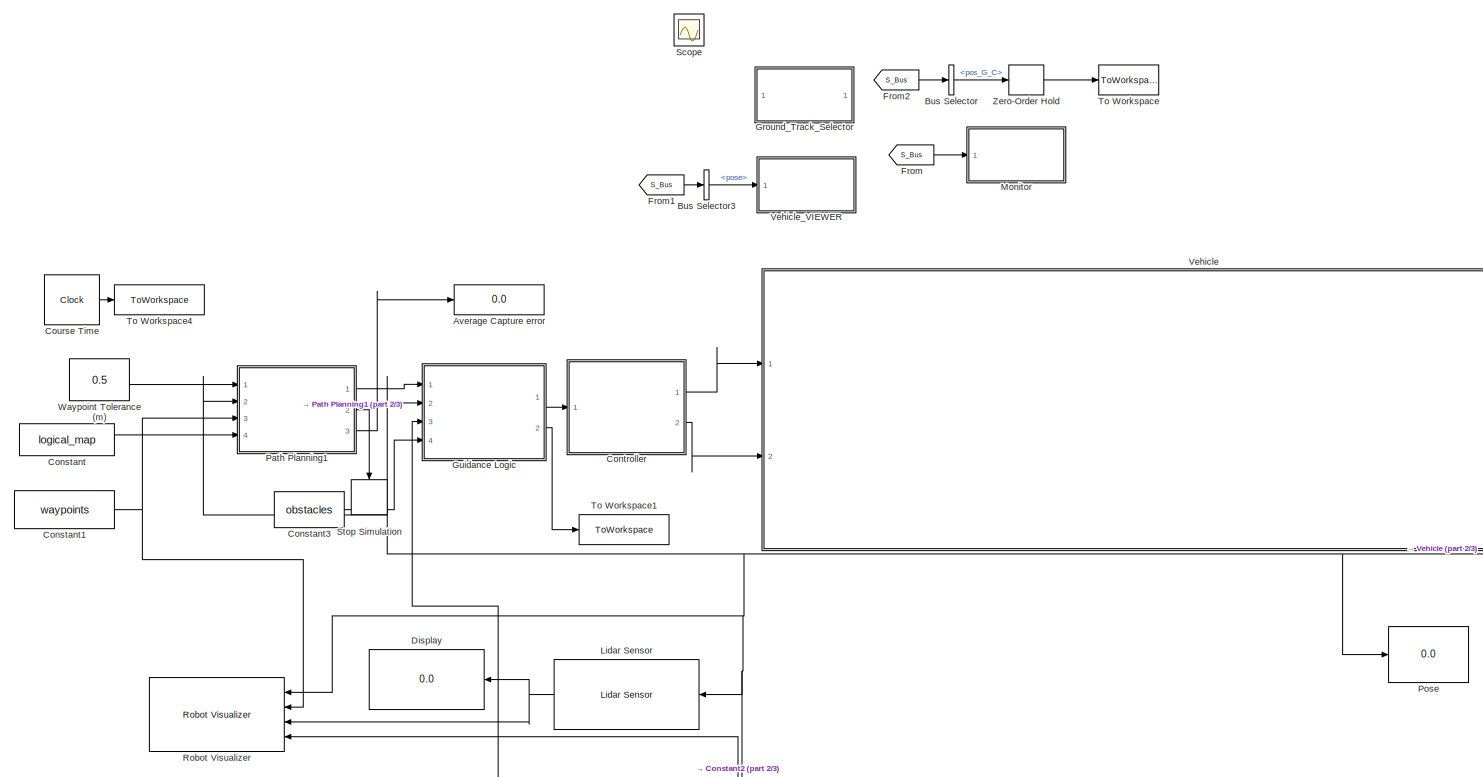
[diagram: root canvas - part 1/3, most of the canvas]
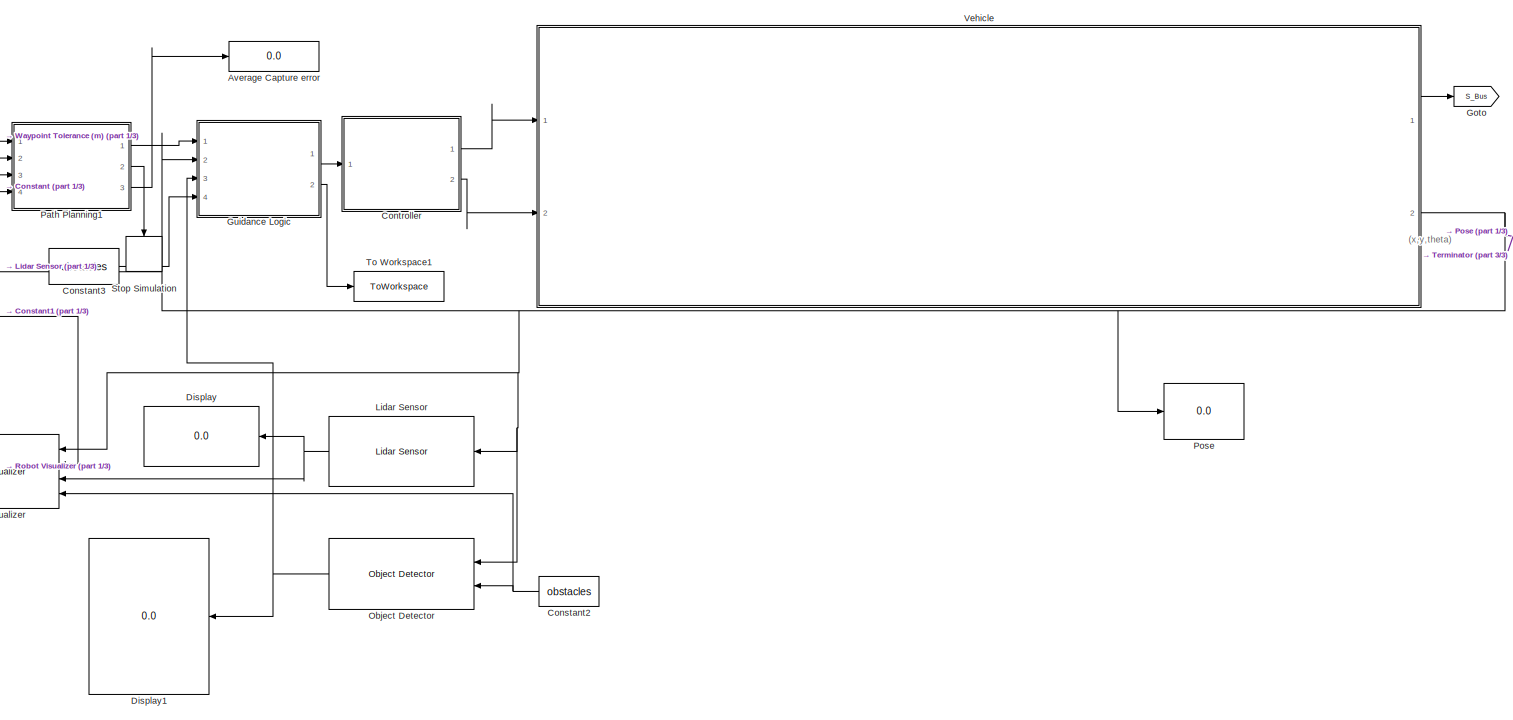
[diagram: root canvas - part 2/3, full width, middle band]
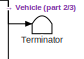
[diagram: root canvas - part 3/3, middle right region]
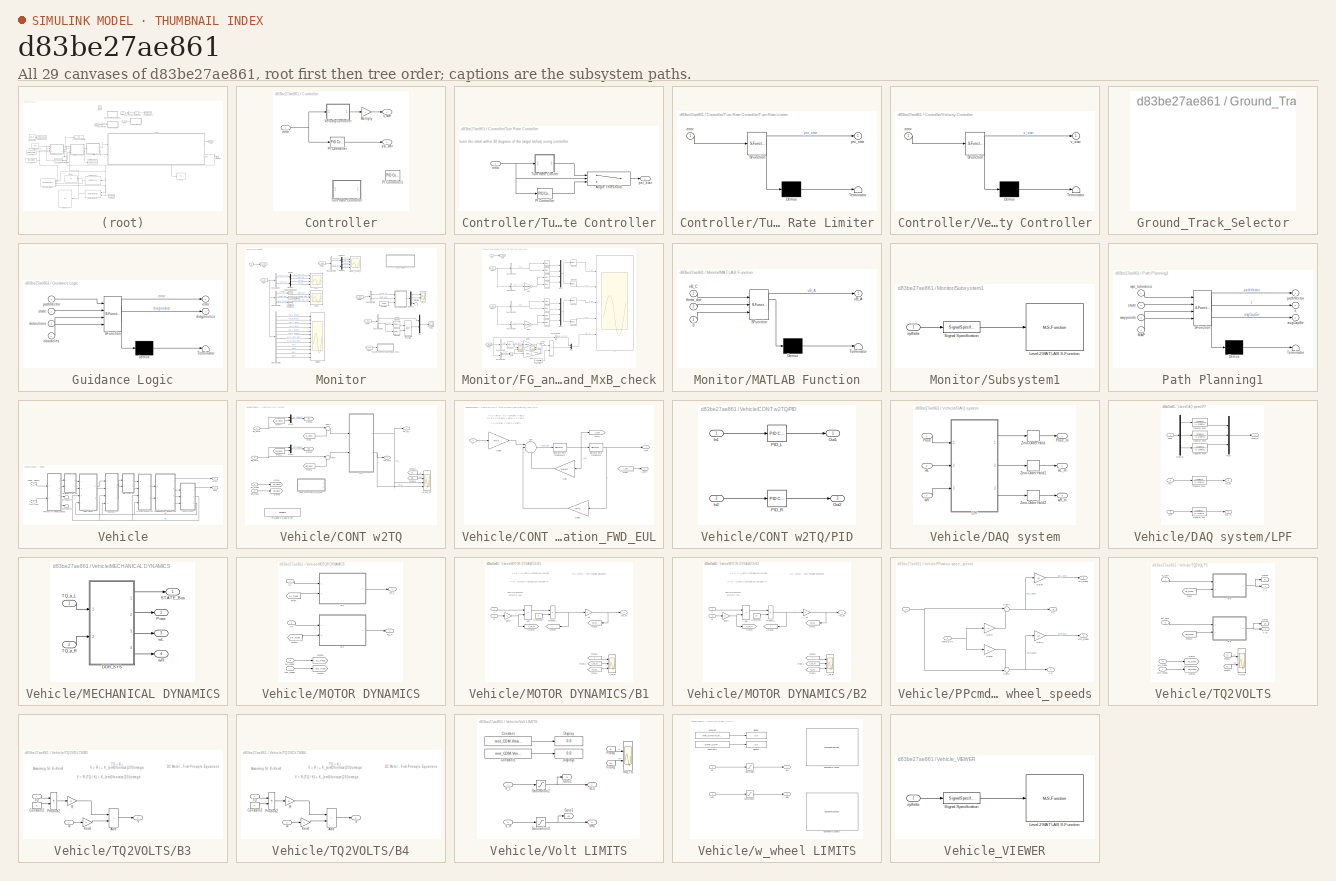
[diagram: thumbnail index - all 29 canvases of the model, root first then tree order]
MODEL slx_d83be27ae861
KIND model
CONFIG AbsTol = auto
CONFIG EnableMultiTasking = on
CONFIG FixedStep = auto
CONFIG InitFcn = load('sim_parameters')
CONFIG MaxStep = auto
CONFIG MinStep = auto
CONFIG RelTol = 1e-5
CONFIG SampleTimeConstraint = Unconstrained
CONFIG SolverName = ode45
CONFIG StartTime = 0.0
CONFIG StopTime = 1000
BLOCK [Display] Average Capture error
  Decimation = 1
  Ports = [1]
BLOCK [BusSelector] Bus Selector
  OutputSignals = BUS_G_frame.pos_G_C
  Ports = [1, 1]
BLOCK [BusSelector] Bus Selector3
  OutputSignals = pose
  Ports = [1, 1]
BLOCK [Constant] Constant
  Value = logical_map
BLOCK [Constant] Constant1
  Value = waypoints
  VectorParams1D = off
BLOCK [Constant] Constant2
  Value = obstacles
  VectorParams1D = off
BLOCK [Constant] Constant3
  Value = obstacles
BLOCK [SubSystem] Controller
  Ports = [1, 2]
  RequestExecContextInheritance = off
BLOCK [Gain] Controller/Multiply
  Commented = through
  Gain = 0
BLOCK [Reference] Controller/PI Controller  REF=pid_lib/PID Controller
  Ports = [1, 1]
  SourceBlock = pid_lib/PID Controller
  SourceProductBaseCode = SL
  SourceType = PID 1dof
BLOCK [Reference] Controller/PI Controller1  REF=pid_lib/PID Controller
  Commented = on
  Ports = [1, 1]
  SourceBlock = pid_lib/PID Controller
  SourceProductBaseCode = SL
  SourceType = PID 1dof
BLOCK [SubSystem] Controller/Turn Rate Controller
  Commented = on
  Ports = [1, 1]
  RequestExecContextInheritance = off
BLOCK [Switch] Controller/Turn Rate Controller/Angle Threshold
  InputSameDT = off
  SaturateOnIntegerOverflow = off
  Threshold = abs(deg2rad(30))+1000
BLOCK [Reference] Controller/Turn Rate Controller/PI Controller  REF=pid_lib/PID Controller
  Ports = [1, 1]
  SourceBlock = pid_lib/PID Controller
  SourceProductBaseCode = SL
  SourceType = PID 1dof
BLOCK [SubSystem] Controller/Turn Rate Controller/Turn Rate Limiter
  ErrorFcn = Stateflow.Translate.translate
  PermitHierarchicalResolution = ExplicitOnly
  Ports = [1, 1]
  RequestExecContextInheritance = off
  SFBlockType = MATLAB Function
  TreatAsAtomicUnit = on
BLOCK [Demux] Controller/Turn Rate Controller/Turn Rate Limiter/ Demux 
  Outputs = 1
  Ports = [1, 1]
BLOCK [S-Function] Controller/Turn Rate Controller/Turn Rate Limiter/ SFunction 
  EnableBusSupport = on
  FunctionName = sf_sfun
  PortCounts = [1 2]
  Ports = [1, 2]
  SFcnIsStateOwnerBlock = off
  SFunctionDeploymentMode = off
  Tag = Stateflow S-Function 4
BLOCK [Terminator] Controller/Turn Rate Controller/Turn Rate Limiter/ Terminator 
BLOCK [Inport] Controller/Turn Rate Controller/Turn Rate Limiter/error
BLOCK [Outport] Controller/Turn Rate Controller/Turn Rate Limiter/psi_star
BLOCK [Inport] Controller/Turn Rate Controller/error
BLOCK [Outport] Controller/Turn Rate Controller/psi_star
BLOCK [SubSystem] Controller/Velocity Controller
  ErrorFcn = Stateflow.Translate.translate
  PermitHierarchicalResolution = ExplicitOnly
  Ports = [1, 1]
  RequestExecContextInheritance = off
  SFBlockType = MATLAB Function
  TreatAsAtomicUnit = on
BLOCK [Demux] Controller/Velocity Controller/ Demux 
  Outputs = 1
  Ports = [1, 1]
BLOCK [S-Function] Controller/Velocity Controller/ SFunction 
  EnableBusSupport = on
  FunctionName = sf_sfun
  PortCounts = [1 2]
  Ports = [1, 2]
  SFcnIsStateOwnerBlock = off
  SFunctionDeploymentMode = off
  Tag = Stateflow S-Function 5
BLOCK [Terminator] Controller/Velocity Controller/ Terminator 
BLOCK [Inport] Controller/Velocity Controller/error
BLOCK [Outport] Controller/Velocity Controller/v_star
BLOCK [Inport] Controller/error
BLOCK [Outport] Controller/psi_star
  Port = 2
BLOCK [Outport] Controller/v_star
BLOCK [Clock] Course Time
  DisplayTime = on
BLOCK [Display] Display
  Decimation = 1
  Ports = [1]
BLOCK [Display] Display1
  Decimation = 1
  Ports = [1]
BLOCK [From] From
  GotoTag = S_Bus
BLOCK [From] From1
  GotoTag = S_Bus
BLOCK [From] From2
  GotoTag = S_Bus
BLOCK [Goto] Goto
  GotoTag = S_Bus
BLOCK [SubSystem] Ground_Track_Selector
  NameLocation = top
  Ports = []
  RequestExecContextInheritance = off
BLOCK [SubSystem] Guidance Logic
  ErrorFcn = Stateflow.Translate.translate
  PermitHierarchicalResolution = ExplicitOnly
  Ports = [4, 2]
  RequestExecContextInheritance = off
  SFBlockType = MATLAB Function
  TreatAsAtomicUnit = on
BLOCK [Demux] Guidance Logic/ Demux 
  Outputs = 1
  Ports = [1, 1]
BLOCK [S-Function] Guidance Logic/ SFunction 
  EnableBusSupport = on
  FunctionName = sf_sfun
  PortCounts = [4 3]
  Ports = [4, 3]
  SFcnIsStateOwnerBlock = off
  SFunctionDeploymentMode = off
  Tag = Stateflow S-Function 2
BLOCK [Terminator] Guidance Logic/ Terminator 
BLOCK [Inport] Guidance Logic/detections
  Port = 3
BLOCK [Outport] Guidance Logic/diagnostics
  Port = 2
BLOCK [Outport] Guidance Logic/error
BLOCK [Inport] Guidance Logic/obstacles
  Port = 4
BLOCK [Inport] Guidance Logic/pathVector
BLOCK [Inport] Guidance Logic/state
  Port = 2
BLOCK [Reference] Lidar Sensor  REF=mobileRoboticsLib/Environments/Lidar Sensor
  Ports = [1, 1]
  SourceBlock = mobileRoboticsLib/Environments/Lidar Sensor
  SourceProductName = Mobile Robotics Simulation Toolbox
  SourceType = LidarSensor
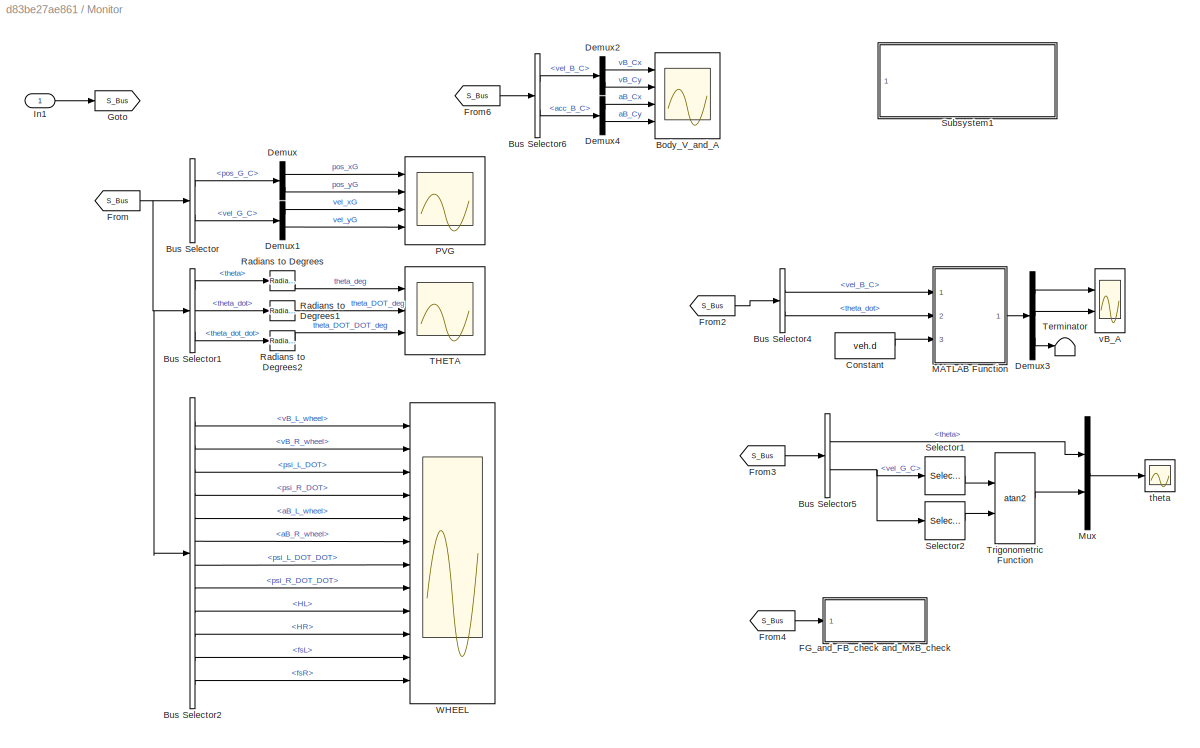
BLOCK [SubSystem] Monitor
  NameLocation = top
  Ports = [1]
  RequestExecContextInheritance = off
BLOCK [Scope] Monitor/Body_V_and_A
  Floating = off
  NumInputPorts = 4
  Ports = [4]
  ScopeSpecificationString = Simulink.scopes.TimeScopeBlockCfg('CurrentConfiguration', extmgr.ConfigurationSet(extmgr.Configuration('Core','General UI',true),extmgr.Configuration('Core','Source UI',true),extmgr.Configuration('Sources','WiredSimulink',true,'DataLoggingVariableName','ScopeData3'),extmgr.Configuration('Visuals','Time Domain',true,'SerializedDisplays',{struct('MinYLimReal','-0.16249','MaxYLimReal','1.46244','YLab...<+3444ch>
BLOCK [BusSelector] Monitor/Bus Selector
  OutputSignals = BUS_G_frame.pos_G_C,BUS_G_frame.vel_G_C
  Ports = [1, 2]
BLOCK [BusSelector] Monitor/Bus Selector1
  OutputSignals = theta,theta_dot,theta_dot_dot
  Ports = [1, 3]
BLOCK [BusSelector] Monitor/Bus Selector2
  OutputSignals = BUS_wheel.BUS_wheel_vel.vB_L_wheel,BUS_wheel.BUS_wheel_vel.vB_R_wheel,BUS_wheel.BUS_wheel_vel.psi_L_DOT,BUS_wheel.BUS_wheel_vel.psi_R_DOT,BUS_wheel.BUS_wheel_acc.aB_L_wheel,BUS_wheel.BUS_wheel_acc.aB_R_wheel,BUS_wheel.BUS_wheel_acc.psi_L_DOT_DOT,BUS_wheel.BUS_wheel_acc.psi_R_DOT_DOT,BUS_wheel.BUS_wheel_force.HL,BUS_wheel.BUS_wheel_force.HR,BUS_wheel.BUS_wheel_force.fsL,BUS_wheel.BUS_wheel_force.fs...<+1ch>
  Ports = [1, 12]
BLOCK [BusSelector] Monitor/Bus Selector4
  OutputSignals = BUS_B_frame.vel_B_C,theta_dot
  Ports = [1, 2]
BLOCK [BusSelector] Monitor/Bus Selector5
  OutputSignals = theta,BUS_G_frame.vel_G_C
  Ports = [1, 2]
BLOCK [BusSelector] Monitor/Bus Selector6
  OutputSignals = BUS_B_frame.vel_B_C,BUS_B_frame.acc_B_C
  Ports = [1, 2]
BLOCK [Constant] Monitor/Constant
  Value = veh.d
BLOCK [Demux] Monitor/Demux
  Outputs = 2
  Ports = [1, 2]
BLOCK [Demux] Monitor/Demux1
  Outputs = 2
  Ports = [1, 2]
BLOCK [Demux] Monitor/Demux2
  Outputs = 2
  Ports = [1, 2]
BLOCK [Demux] Monitor/Demux3
  Outputs = 3
  Ports = [1, 3]
BLOCK [Demux] Monitor/Demux4
  Outputs = 2
  Ports = [1, 2]
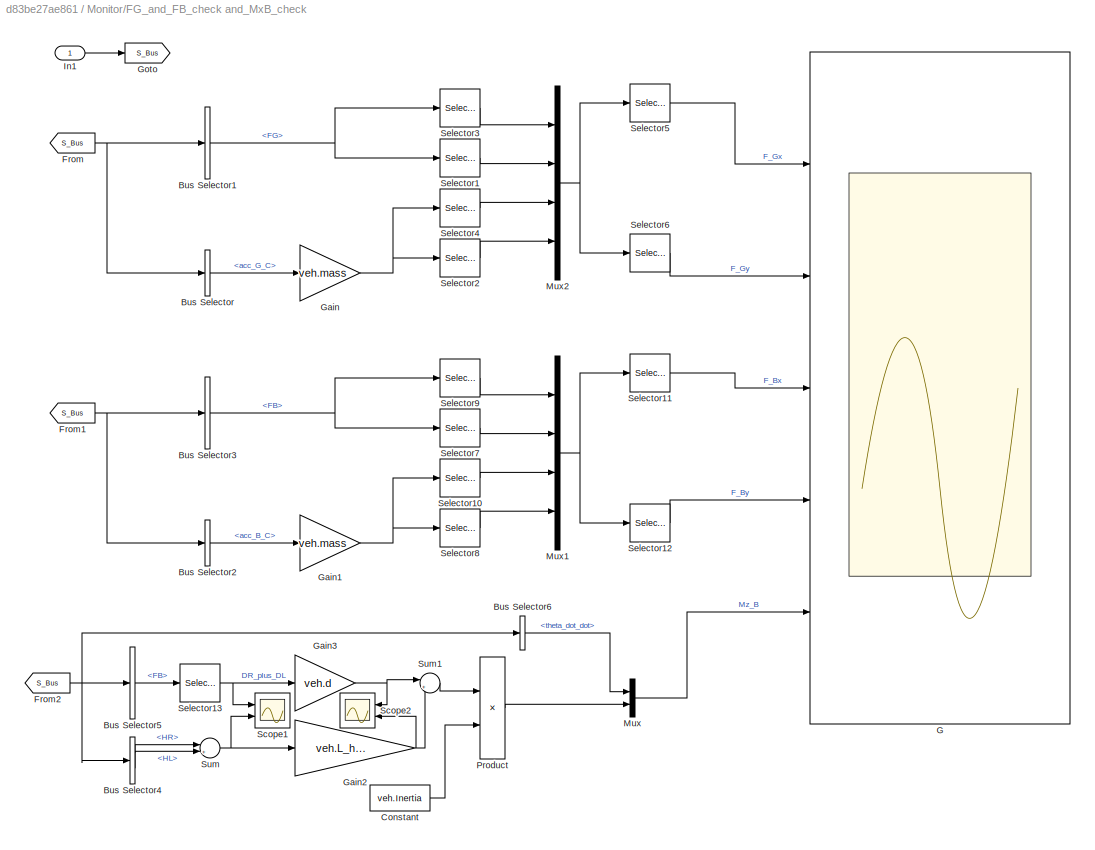
BLOCK [SubSystem] Monitor/FG_and_FB_check and_MxB_check
  NameLocation = top
  Ports = [1]
  RequestExecContextInheritance = off
BLOCK [BusSelector] Monitor/FG_and_FB_check and_MxB_check/Bus Selector
  OutputSignals = BUS_G_frame.acc_G_C
  Ports = [1, 1]
BLOCK [BusSelector] Monitor/FG_and_FB_check and_MxB_check/Bus Selector1
  OutputSignals = BUS_veh_F.BUS_veh_FG.FG
  Ports = [1, 1]
BLOCK [BusSelector] Monitor/FG_and_FB_check and_MxB_check/Bus Selector2
  OutputSignals = BUS_B_frame.acc_B_C
  Ports = [1, 1]
BLOCK [BusSelector] Monitor/FG_and_FB_check and_MxB_check/Bus Selector3
  OutputSignals = BUS_veh_F.BUS_veh_Fb.FB
  Ports = [1, 1]
BLOCK [BusSelector] Monitor/FG_and_FB_check and_MxB_check/Bus Selector4
  OutputSignals = BUS_wheel.BUS_wheel_force.HR,BUS_wheel.BUS_wheel_force.HL
  Ports = [1, 2]
BLOCK [BusSelector] Monitor/FG_and_FB_check and_MxB_check/Bus Selector5
  OutputSignals = BUS_veh_F.BUS_veh_Fb.FB
  Ports = [1, 1]
BLOCK [BusSelector] Monitor/FG_and_FB_check and_MxB_check/Bus Selector6
  OutputSignals = theta_dot_dot
  Ports = [1, 1]
BLOCK [Constant] Monitor/FG_and_FB_check and_MxB_check/Constant
  Value = veh.Inertia
BLOCK [From] Monitor/FG_and_FB_check and_MxB_check/From
  GotoTag = S_Bus
BLOCK [From] Monitor/FG_and_FB_check and_MxB_check/From1
  GotoTag = S_Bus
BLOCK [From] Monitor/FG_and_FB_check and_MxB_check/From2
  GotoTag = S_Bus
BLOCK [Scope] Monitor/FG_and_FB_check and_MxB_check/G
  Floating = off
  NumInputPorts = 5
  Ports = [5]
  ScopeSpecificationString = Simulink.scopes.TimeScopeBlockCfg('CurrentConfiguration', extmgr.ConfigurationSet(extmgr.Configuration('Core','General UI',true),extmgr.Configuration('Core','Source UI',true),extmgr.Configuration('Sources','WiredSimulink',true,'DataLoggingVariableName','ScopeData1'),extmgr.Configuration('Visuals','Time Domain',true,'SerializedDisplays',{struct('MinYLimReal','-2.92698','MaxYLimReal','17.07434','YLa...<+4843ch>
BLOCK [Gain] Monitor/FG_and_FB_check and_MxB_check/Gain
  Gain = veh.mass
BLOCK [Gain] Monitor/FG_and_FB_check and_MxB_check/Gain1
  Gain = veh.mass
BLOCK [Gain] Monitor/FG_and_FB_check and_MxB_check/Gain2
  Gain = veh.L_half_axle
BLOCK [Gain] Monitor/FG_and_FB_check and_MxB_check/Gain3
  Gain = veh.d
BLOCK [Goto] Monitor/FG_and_FB_check and_MxB_check/Goto
  GotoTag = S_Bus
BLOCK [Inport] Monitor/FG_and_FB_check and_MxB_check/In1
BLOCK [Mux] Monitor/FG_and_FB_check and_MxB_check/Mux
  DisplayOption = bar
  Inputs = 2
  Ports = [2, 1]
BLOCK [Mux] Monitor/FG_and_FB_check and_MxB_check/Mux1
  DisplayOption = bar
  Ports = [4, 1]
BLOCK [Mux] Monitor/FG_and_FB_check and_MxB_check/Mux2
  DisplayOption = bar
  Ports = [4, 1]
BLOCK [Product] Monitor/FG_and_FB_check and_MxB_check/Product
  Inputs = */
  Ports = [2, 1]
BLOCK [Scope] Monitor/FG_and_FB_check and_MxB_check/Scope1
  Floating = off
  NumInputPorts = 2
  Ports = [2]
  ScopeSpecificationString = Simulink.scopes.TimeScopeBlockCfg('CurrentConfiguration', extmgr.ConfigurationSet(extmgr.Configuration('Core','General UI',true),extmgr.Configuration('Core','Source UI',true),extmgr.Configuration('Sources','WiredSimulink',true,'DataLoggingVariableName','ScopeData5'),extmgr.Configuration('Visuals','Time Domain',true,'SerializedDisplays',{struct('MinYLimReal','-0.09071','MaxYLimReal','0.16814','YLab...<+2064ch>
BLOCK [Scope] Monitor/FG_and_FB_check and_MxB_check/Scope2
  Floating = off
  NameLocation = top
  NumInputPorts = 2
  Ports = [2]
  ScopeSpecificationString = Simulink.scopes.TimeScopeBlockCfg('CurrentConfiguration', extmgr.ConfigurationSet(extmgr.Configuration('Core','General UI',true),extmgr.Configuration('Core','Source UI',true),extmgr.Configuration('Sources','WiredSimulink',true,'DataLoggingVariableName','ScopeData6'),extmgr.Configuration('Visuals','Time Domain',true,'SerializedDisplays',{struct('MinYLimReal','-0.0093','MaxYLimReal','0.0121','YLabel...<+2057ch>
BLOCK [Selector] Monitor/FG_and_FB_check and_MxB_check/Selector1
  IndexOptions = Index vector (dialog)
  Indices = 2
  InputPortWidth = 2
  OutputSizes = 1
  Ports = [1, 1]
BLOCK [Selector] Monitor/FG_and_FB_check and_MxB_check/Selector10
  IndexOptions = Index vector (dialog)
  Indices = 1
  InputPortWidth = 2
  OutputSizes = 1
  Ports = [1, 1]
BLOCK [Selector] Monitor/FG_and_FB_check and_MxB_check/Selector11
  IndexOptions = Index vector (dialog)
  Indices = [1 3]
  InputPortWidth = 4
  OutputSizes = 1
  Ports = [1, 1]
BLOCK [Selector] Monitor/FG_and_FB_check and_MxB_check/Selector12
  IndexOptions = Index vector (dialog)
  Indices = [2 4]
  InputPortWidth = 4
  OutputSizes = 1
  Ports = [1, 1]
BLOCK [Selector] Monitor/FG_and_FB_check and_MxB_check/Selector13
  IndexOptions = Index vector (dialog)
  Indices = 2
  InputPortWidth = 2
  OutputSizes = 1
  Ports = [1, 1]
BLOCK [Selector] Monitor/FG_and_FB_check and_MxB_check/Selector2
  IndexOptions = Index vector (dialog)
  Indices = 2
  InputPortWidth = 2
  OutputSizes = 1
  Ports = [1, 1]
BLOCK [Selector] Monitor/FG_and_FB_check and_MxB_check/Selector3
  IndexOptions = Index vector (dialog)
  Indices = 1
  InputPortWidth = 2
  OutputSizes = 1
  Ports = [1, 1]
BLOCK [Selector] Monitor/FG_and_FB_check and_MxB_check/Selector4
  IndexOptions = Index vector (dialog)
  Indices = 1
  InputPortWidth = 2
  OutputSizes = 1
  Ports = [1, 1]
BLOCK [Selector] Monitor/FG_and_FB_check and_MxB_check/Selector5
  IndexOptions = Index vector (dialog)
  Indices = [1 3]
  InputPortWidth = 4
  OutputSizes = 1
  Ports = [1, 1]
BLOCK [Selector] Monitor/FG_and_FB_check and_MxB_check/Selector6
  IndexOptions = Index vector (dialog)
  Indices = [2 4]
  InputPortWidth = 4
  OutputSizes = 1
  Ports = [1, 1]
BLOCK [Selector] Monitor/FG_and_FB_check and_MxB_check/Selector7
  IndexOptions = Index vector (dialog)
  Indices = 2
  InputPortWidth = 2
  OutputSizes = 1
  Ports = [1, 1]
BLOCK [Selector] Monitor/FG_and_FB_check and_MxB_check/Selector8
  IndexOptions = Index vector (dialog)
  Indices = 2
  InputPortWidth = 2
  OutputSizes = 1
  Ports = [1, 1]
BLOCK [Selector] Monitor/FG_and_FB_check and_MxB_check/Selector9
  IndexOptions = Index vector (dialog)
  Indices = 1
  InputPortWidth = 2
  OutputSizes = 1
  Ports = [1, 1]
BLOCK [Sum] Monitor/FG_and_FB_check and_MxB_check/Sum
  Inputs = |+-
  Ports = [2, 1]
BLOCK [Sum] Monitor/FG_and_FB_check and_MxB_check/Sum1
  Inputs = |++
  Ports = [2, 1]
BLOCK [From] Monitor/From
  GotoTag = S_Bus
BLOCK [From] Monitor/From2
  GotoTag = S_Bus
BLOCK [From] Monitor/From3
  GotoTag = S_Bus
BLOCK [From] Monitor/From4
  GotoTag = S_Bus
BLOCK [From] Monitor/From6
  GotoTag = S_Bus
BLOCK [Goto] Monitor/Goto
  GotoTag = S_Bus
BLOCK [Inport] Monitor/In1
BLOCK [SubSystem] Monitor/MATLAB Function
  ErrorFcn = Stateflow.Translate.translate
  PermitHierarchicalResolution = ExplicitOnly
  Ports = [3, 1]
  RequestExecContextInheritance = off
  SFBlockType = MATLAB Function
  TreatAsAtomicUnit = on
BLOCK [Demux] Monitor/MATLAB Function/ Demux 
  Outputs = 1
  Ports = [1, 1]
BLOCK [S-Function] Monitor/MATLAB Function/ SFunction 
  EnableBusSupport = on
  FunctionName = sf_sfun
  PortCounts = [3 2]
  Ports = [3, 2]
  SFcnIsStateOwnerBlock = off
  SFunctionDeploymentMode = off
  Tag = Stateflow S-Function 1
BLOCK [Terminator] Monitor/MATLAB Function/ Terminator 
BLOCK [Inport] Monitor/MATLAB Function/d
  Port = 3
BLOCK [Inport] Monitor/MATLAB Function/theta_dot
  Port = 2
BLOCK [Outport] Monitor/MATLAB Function/vB_A
  VectorParamsAs1DForOutWhenUnconnected = off
BLOCK [Inport] Monitor/MATLAB Function/vB_C
BLOCK [Mux] Monitor/Mux
  DisplayOption = bar
  Inputs = 2
  Ports = [2, 1]
BLOCK [Scope] Monitor/PVG
  Floating = off
  NameLocation = top
  NumInputPorts = 4
  Ports = [4]
  ScopeSpecificationString = Simulink.scopes.TimeScopeBlockCfg('CurrentConfiguration', extmgr.ConfigurationSet(extmgr.Configuration('Core','General UI',true),extmgr.Configuration('Core','Source UI',true),extmgr.Configuration('Sources','WiredSimulink',true,'DataLoggingVariableName','ScopeData1'),extmgr.Configuration('Visuals','Time Domain',true,'SerializedDisplays',{struct('MinYLimReal','-374.60719','MaxYLimReal','520.79363','...<+3424ch>
BLOCK [Reference] Monitor/Radians to Degrees  REF=simulink_extras/Transformations/Radians
to Degrees
  Ports = [1, 1]
  SourceBlock = simulink_extras/Transformations/Radians\nto Degrees
  SourceProductBaseCode = SL
  SourceType = RadiansToDegrees
BLOCK [Reference] Monitor/Radians to Degrees1  REF=simulink_extras/Transformations/Radians
to Degrees
  Ports = [1, 1]
  SourceBlock = simulink_extras/Transformations/Radians\nto Degrees
  SourceProductBaseCode = SL
  SourceType = RadiansToDegrees
BLOCK [Reference] Monitor/Radians to Degrees2  REF=simulink_extras/Transformations/Radians
to Degrees
  Ports = [1, 1]
  SourceBlock = simulink_extras/Transformations/Radians\nto Degrees
  SourceProductBaseCode = SL
  SourceType = RadiansToDegrees
BLOCK [Selector] Monitor/Selector1
  IndexOptions = Index vector (dialog)
  Indices = [ 2]
  InputPortWidth = 2
  OutputSizes = 1
  Ports = [1, 1]
BLOCK [Selector] Monitor/Selector2
  IndexOptions = Index vector (dialog)
  Indices = [ 1]
  InputPortWidth = 2
  OutputSizes = 1
  Ports = [1, 1]
BLOCK [SubSystem] Monitor/Subsystem1
  Commented = on
  Ports = [1]
  RequestExecContextInheritance = off
BLOCK [M-S-Function] Monitor/Subsystem1/Level-2 MATLAB S-Function
  FunctionName = bh_ddr_animate_sfun
  Parameters = Ts, wp_mat, veh_ID_num, veh_init_xytheta
  Ports = [1]
BLOCK [SignalSpecification] Monitor/Subsystem1/Signal Specification
  Dimensions = 3
BLOCK [Inport] Monitor/Subsystem1/xytheta
BLOCK [Scope] Monitor/THETA
  Floating = off
  NumInputPorts = 3
  Ports = [3]
  ScopeSpecificationString = Simulink.scopes.TimeScopeBlockCfg('CurrentConfiguration', extmgr.ConfigurationSet(extmgr.Configuration('Core','General UI',true),extmgr.Configuration('Core','Source UI',true),extmgr.Configuration('Sources','WiredSimulink',true,'DataLoggingVariableName','ScopeData2'),extmgr.Configuration('Visuals','Time Domain',true,'SerializedDisplays',{struct('MinYLimReal','-337.76281','MaxYLimReal','707.04365','...<+3096ch>
BLOCK [Terminator] Monitor/Terminator
BLOCK [Trigonometry] Monitor/Trigonometric Function
  Operator = atan2
  Ports = [2, 1]
BLOCK [Scope] Monitor/WHEEL
  Floating = off
  NumInputPorts = 12
  Ports = [12]
  ScopeSpecificationString = Simulink.scopes.TimeScopeBlockCfg('CurrentConfiguration', extmgr.ConfigurationSet(extmgr.Configuration('Core','General UI',true),extmgr.Configuration('Core','Source UI',true),extmgr.Configuration('Sources','WiredSimulink',true,'DataLoggingVariableName','ScopeData3'),extmgr.Configuration('Visuals','Time Domain',true,'SerializedDisplays',{struct('MinYLimReal','-0.17921','MaxYLimReal','1.61286','YLab...<+9057ch>
BLOCK [Scope] Monitor/theta
  Floating = off
  NumInputPorts = 1
  Ports = [1]
  ScopeSpecificationString = Simulink.scopes.TimeScopeBlockCfg('CurrentConfiguration', extmgr.ConfigurationSet(extmgr.Configuration('Core','General UI',true),extmgr.Configuration('Core','Source UI',true),extmgr.Configuration('Sources','WiredSimulink',true,'DataLoggingVariableName','ScopeData2'),extmgr.Configuration('Visuals','Time Domain',true,'SerializedDisplays',{struct('MinYLimReal','-5.78827','MaxYLimReal','12.27495','YLa...<+1420ch>
BLOCK [Scope] Monitor/vB_A
  Floating = off
  NumInputPorts = 2
  Ports = [2]
  ScopeSpecificationString = Simulink.scopes.TimeScopeBlockCfg('CurrentConfiguration', extmgr.ConfigurationSet(extmgr.Configuration('Core','General UI',true),extmgr.Configuration('Core','Source UI',true),extmgr.Configuration('Sources','WiredSimulink',true,'DataLoggingVariableName','ScopeData1'),extmgr.Configuration('Visuals','Time Domain',true,'SerializedDisplays',{struct('MinYLimReal','-0.16316','MaxYLimReal','1.46843','YLab...<+2041ch>
BLOCK [Reference] Object Detector  REF=mobileRoboticsLib/Environments/Object Detector
  Ports = [2, 1]
  SourceBlock = mobileRoboticsLib/Environments/Object Detector
  SourceProductName = Mobile Robotics Simulation Toolbox
  SourceType = ObjectDetector
BLOCK [SubSystem] Path Planning1
  ErrorFcn = Stateflow.Translate.translate
  PermitHierarchicalResolution = ExplicitOnly
  Ports = [4, 3]
  RequestExecContextInheritance = off
  SFBlockType = MATLAB Function
  TreatAsAtomicUnit = on
BLOCK [Demux] Path Planning1/ Demux 
  Outputs = 1
  Ports = [1, 1]
BLOCK [S-Function] Path Planning1/ SFunction 
  EnableBusSupport = on
  FunctionName = sf_sfun
  PortCounts = [4 4]
  Ports = [4, 4]
  SFcnIsStateOwnerBlock = off
  SFunctionDeploymentMode = off
  Tag = Stateflow S-Function 6
BLOCK [Terminator] Path Planning1/ Terminator 
BLOCK [Inport] Path Planning1/MAP
  Port = 4
BLOCK [Outport] Path Planning1/avgCapErr
  Port = 3
BLOCK [Outport] Path Planning1/pathVector
BLOCK [Outport] Path Planning1/s
  Port = 2
BLOCK [Inport] Path Planning1/state
  Port = 2
BLOCK [Inport] Path Planning1/waypoints
  Port = 3
BLOCK [Inport] Path Planning1/wpt_tolerance
BLOCK [Display] Pose
  Decimation = 1
  Ports = [1]
BLOCK [Reference] Robot Visualizer  REF=mobileRoboticsLib/Environments/Robot Visualizer
  Ports = [4]
  SourceBlock = mobileRoboticsLib/Environments/Robot Visualizer
  SourceProductName = Mobile Robotics Simulation Toolbox
  SourceType = Visualizer2D
BLOCK [Scope] Scope
  Floating = off
  IOType = viewer
  NumInputPorts = 1
  Ports = []
  ScopeSpecificationString = Simulink.scopes.TimeScopeBlockCfg('CurrentConfiguration', extmgr.ConfigurationSet(extmgr.Configuration('Core','General UI',true),extmgr.Configuration('Core','Source UI',true),extmgr.Configuration('Sources','WiredSimulink',true,'DataLoggingVariableName','ScopeData1'),extmgr.Configuration('Visuals','Time Domain',true,'SerializedDisplays',{struct('MinYLimReal','0.07','MaxYLimReal','0.09','YLabelReal'...<+1950ch>
BLOCK [Stop] Stop Simulation
  NameLocation = left
BLOCK [Terminator] Terminator
BLOCK [ToWorkspace] To Workspace
  FixptAsFi = on
  MaxDataPoints = inf
  Ports = [1]
  SampleTime = -1
  SaveFormat = Structure With Time
  VariableName = simout
BLOCK [ToWorkspace] To Workspace1
  FixptAsFi = on
  MaxDataPoints = inf
  Ports = [1]
  SampleTime = -1
  VariableName = diagnostics
BLOCK [ToWorkspace] To Workspace4
  FixptAsFi = on
  MaxDataPoints = inf
  Ports = [1]
  SampleTime = -1
  VariableName = timeOut
BLOCK [SubSystem] Vehicle
  Ports = [2, 2]
  RequestExecContextInheritance = off
BLOCK [SubSystem] Vehicle/CONT w2TQ
  NameLocation = top
  Ports = [4, 2]
  RequestExecContextInheritance = off
BLOCK [SubSystem] Vehicle/CONT w2TQ/Deriv_estimation_FWD_EUL
  Commented = on
  Ports = [1, 2]
  RequestExecContextInheritance = off
BLOCK [DiscreteIntegrator] Vehicle/CONT w2TQ/Deriv_estimation_FWD_EUL/Discrete-Time Integrator
  ICPrevOutput = DiscIntNeverNeededParam
  ICPrevScaledInput = DiscIntNeverNeededParam
  InitialConditionSetting = Auto
  Ports = [1, 1]
  SampleTime = dt
BLOCK [DiscreteIntegrator] Vehicle/CONT w2TQ/Deriv_estimation_FWD_EUL/Discrete-Time Integrator1
  ICPrevOutput = DiscIntNeverNeededParam
  ICPrevScaledInput = DiscIntNeverNeededParam
  InitialConditionSetting = Auto
  Ports = [1, 1]
  SampleTime = dt
BLOCK [From] Vehicle/CONT w2TQ/Deriv_estimation_FWD_EUL/From
  GotoTag = Y_DOT
BLOCK [Gain] Vehicle/CONT w2TQ/Deriv_estimation_FWD_EUL/Gain
  Gain = 2*p*wn
  NameLocation = top
BLOCK [Gain] Vehicle/CONT w2TQ/Deriv_estimation_FWD_EUL/Gain1
  Gain = wn^2
  NameLocation = top
BLOCK [Gain] Vehicle/CONT w2TQ/Deriv_estimation_FWD_EUL/Gain2
  Gain = wn^2
BLOCK [Goto] Vehicle/CONT w2TQ/Deriv_estimation_FWD_EUL/Goto
  GotoTag = Y_DOT
BLOCK [Sum] Vehicle/CONT w2TQ/Deriv_estimation_FWD_EUL/Sum
  Inputs = |+--
  Ports = [3, 1]
BLOCK [Inport] Vehicle/CONT w2TQ/Deriv_estimation_FWD_EUL/U
BLOCK [Outport] Vehicle/CONT w2TQ/Deriv_estimation_FWD_EUL/U_DOT
  Port = 2
  VectorParamsAs1DForOutWhenUnconnected = off
BLOCK [Outport] Vehicle/CONT w2TQ/Deriv_estimation_FWD_EUL/U_filt
  VectorParamsAs1DForOutWhenUnconnected = off
BLOCK [From] Vehicle/CONT w2TQ/From
  GotoTag = wL_meas
BLOCK [From] Vehicle/CONT w2TQ/From1
  GotoTag = wR_meas
BLOCK [From] Vehicle/CONT w2TQ/From2
  GotoTag = wL
BLOCK [From] Vehicle/CONT w2TQ/From3
  GotoTag = wR
BLOCK [From] Vehicle/CONT w2TQ/From4
  GotoTag = wL_meas
BLOCK [From] Vehicle/CONT w2TQ/From5
  GotoTag = wR_meas
BLOCK [Goto] Vehicle/CONT w2TQ/Goto2
  GotoTag = wR
BLOCK [Goto] Vehicle/CONT w2TQ/Goto3
  GotoTag = wR_meas
BLOCK [Goto] Vehicle/CONT w2TQ/Goto4
  GotoTag = wL_meas
BLOCK [Goto] Vehicle/CONT w2TQ/Goto5
  GotoTag = wL
BLOCK [Mux] Vehicle/CONT w2TQ/Mux1
  DisplayOption = bar
  Inputs = 2
  Ports = [2, 1]
BLOCK [Mux] Vehicle/CONT w2TQ/Mux2
  DisplayOption = bar
  Inputs = 2
  Ports = [2, 1]
BLOCK [SubSystem] Vehicle/CONT w2TQ/PID
  Ports = [2, 2]
  RequestExecContextInheritance = off
BLOCK [Inport] Vehicle/CONT w2TQ/PID/In1
BLOCK [Inport] Vehicle/CONT w2TQ/PID/In2
  Port = 2
BLOCK [Outport] Vehicle/CONT w2TQ/PID/Out1
  VectorParamsAs1DForOutWhenUnconnected = off
BLOCK [Outport] Vehicle/CONT w2TQ/PID/Out2
  Port = 2
  VectorParamsAs1DForOutWhenUnconnected = off
BLOCK [Reference] Vehicle/CONT w2TQ/PID/PID_L  REF=pid_lib/PID Controller
  Ports = [1, 1]
  SourceBlock = pid_lib/PID Controller
  SourceProductBaseCode = SL
  SourceType = PID 1dof
BLOCK [Reference] Vehicle/CONT w2TQ/PID/PID_R  REF=pid_lib/PID Controller
  Ports = [1, 1]
  SourceBlock = pid_lib/PID Controller
  SourceProductBaseCode = SL
  SourceType = PID 1dof
BLOCK [Reference] Vehicle/CONT w2TQ/PID_DESIGN_SUMMARY  REF=simulink/Model-Wide
Utilities/DocBlock
  Ports = []
  SourceBlock = simulink/Model-Wide\nUtilities/DocBlock
  SourceProductBaseCode = SL
  SourceType = DocBlock
  UserDataPersistent = on
BLOCK [Sum] Vehicle/CONT w2TQ/Sum
  Inputs = |+-
  Ports = [2, 1]
BLOCK [Sum] Vehicle/CONT w2TQ/Sum1
  Inputs = |+-
  Ports = [2, 1]
BLOCK [Outport] Vehicle/CONT w2TQ/TQ_a_L
  VectorParamsAs1DForOutWhenUnconnected = off
BLOCK [Outport] Vehicle/CONT w2TQ/TQ_a_R
  Port = 2
  VectorParamsAs1DForOutWhenUnconnected = off
BLOCK [Inport] Vehicle/CONT w2TQ/wL_CMD
BLOCK [Inport] Vehicle/CONT w2TQ/wL_meas
  NameLocation = top
  Port = 3
BLOCK [Inport] Vehicle/CONT w2TQ/wR_CMD
  Port = 2
BLOCK [Inport] Vehicle/CONT w2TQ/wR_meas
  Port = 4
BLOCK [Scope] Vehicle/CONT w2TQ/w_and_TQ
  Floating = off
  NumInputPorts = 4
  Ports = [4]
  ScopeSpecificationString = Simulink.scopes.TimeScopeBlockCfg('CurrentConfiguration', extmgr.ConfigurationSet(extmgr.Configuration('Core','General UI',true),extmgr.Configuration('Core','Source UI',true),extmgr.Configuration('Sources','WiredSimulink',true,'DataLoggingVariableName','ScopeData7'),extmgr.Configuration('Visuals','Time Domain',true,'SerializedDisplays',{struct('MinYLimReal','-0.70355','MaxYLimReal','6.33198','YLab...<+3449ch>
BLOCK [SubSystem] Vehicle/DAQ system
  Ports = [3, 3]
  RequestExecContextInheritance = off
BLOCK [SubSystem] Vehicle/DAQ system/LPF
  Ports = [3, 3]
  RequestExecContextInheritance = off
BLOCK [Demux] Vehicle/DAQ system/LPF/Demux
  Outputs = 3
  Ports = [1, 3]
BLOCK [Mux] Vehicle/DAQ system/LPF/Mux
  DisplayOption = bar
  Inputs = 3
  Ports = [3, 1]
BLOCK [Inport] Vehicle/DAQ system/LPF/Pose
BLOCK [Outport] Vehicle/DAQ system/LPF/Pose_m
  VectorParamsAs1DForOutWhenUnconnected = off
BLOCK [TransferFcn] Vehicle/DAQ system/LPF/Transfer Fcn
  Denominator = [1 2*pi*fc]
  Numerator = [2*pi*fc]
BLOCK [TransferFcn] Vehicle/DAQ system/LPF/Transfer Fcn1
  Denominator = [1 2*pi*fc]
  Numerator = [2*pi*fc]
BLOCK [TransferFcn] Vehicle/DAQ system/LPF/Transfer Fcn2
  Denominator = [1 2*pi*fc]
  Numerator = [2*pi*fc]
BLOCK [TransferFcn] Vehicle/DAQ system/LPF/Transfer Fcn3
  Denominator = [1 2*pi*fc]
  Numerator = [2*pi*fc]
BLOCK [TransferFcn] Vehicle/DAQ system/LPF/Transfer Fcn4
  Denominator = [1 2*pi*fc]
  Numerator = [2*pi*fc]
BLOCK [Inport] Vehicle/DAQ system/LPF/wL
  Port = 2
BLOCK [Outport] Vehicle/DAQ system/LPF/wL_m
  Port = 2
  VectorParamsAs1DForOutWhenUnconnected = off
BLOCK [Inport] Vehicle/DAQ system/LPF/wR
  Port = 3
BLOCK [Outport] Vehicle/DAQ system/LPF/wR_m
  Port = 3
  VectorParamsAs1DForOutWhenUnconnected = off
BLOCK [Inport] Vehicle/DAQ system/Pose
BLOCK [Outport] Vehicle/DAQ system/Pose_m
  VectorParamsAs1DForOutWhenUnconnected = off
BLOCK [ZeroOrderHold] Vehicle/DAQ system/Zero-Order Hold
  AttributesFormatString = Ts=%<SampleTime>
  SampleTime = Ts
BLOCK [ZeroOrderHold] Vehicle/DAQ system/Zero-Order Hold1
  AttributesFormatString = Ts=%<SampleTime>
  SampleTime = Ts
BLOCK [ZeroOrderHold] Vehicle/DAQ system/Zero-Order Hold2
  AttributesFormatString = Ts=%<SampleTime>
  SampleTime = Ts
BLOCK [Inport] Vehicle/DAQ system/wL
  Port = 2
BLOCK [Outport] Vehicle/DAQ system/wL_m
  Port = 2
  VectorParamsAs1DForOutWhenUnconnected = off
BLOCK [Inport] Vehicle/DAQ system/wR
  Port = 3
BLOCK [Outport] Vehicle/DAQ system/wR_m
  Port = 3
  VectorParamsAs1DForOutWhenUnconnected = off
BLOCK [Inport] Vehicle/Linear velocity
BLOCK [SubSystem] Vehicle/MECHANICAL DYNAMICS
  NameLocation = top
  Ports = [2, 4]
  RequestExecContextInheritance = off
BLOCK [ModelReference] Vehicle/MECHANICAL DYNAMICS/DDR_SYS
  ModelNameDialog = bh_DDR_component_model.slx
  ModelReferenceVersion = 4.0
  NameLocation = top
  Ports = [2, 4]
BLOCK [Outport] Vehicle/MECHANICAL DYNAMICS/Pose
  Port = 2
  VectorParamsAs1DForOutWhenUnconnected = off
BLOCK [Outport] Vehicle/MECHANICAL DYNAMICS/STATE_Bus
  VectorParamsAs1DForOutWhenUnconnected = off
BLOCK [Inport] Vehicle/MECHANICAL DYNAMICS/TQ_a_L
BLOCK [Inport] Vehicle/MECHANICAL DYNAMICS/TQ_a_R
  Port = 2
BLOCK [Outport] Vehicle/MECHANICAL DYNAMICS/wL
  Port = 3
  VectorParamsAs1DForOutWhenUnconnected = off
BLOCK [Outport] Vehicle/MECHANICAL DYNAMICS/wR
  Port = 4
  VectorParamsAs1DForOutWhenUnconnected = off
BLOCK [SubSystem] Vehicle/MOTOR DYNAMICS
  NameLocation = top
  Ports = [4, 2]
  RequestExecContextInheritance = off
BLOCK [SubSystem] Vehicle/MOTOR DYNAMICS/B1
  NameLocation = top
  Ports = [2, 1]
  RequestExecContextInheritance = off
BLOCK [Sum] Vehicle/MOTOR DYNAMICS/B1/Add
  IconShape = rectangular
  Inputs = +-
  Ports = [2, 1]
BLOCK [Constant] Vehicle/MOTOR DYNAMICS/B1/Constant1
  Value = R
BLOCK [From] Vehicle/MOTOR DYNAMICS/B1/From1
  GotoTag = V_Kb_w
BLOCK [From] Vehicle/MOTOR DYNAMICS/B1/From2
  GotoTag = i
BLOCK [From] Vehicle/MOTOR DYNAMICS/B1/From4
  GotoTag = TQ_Kt_i
BLOCK [Goto] Vehicle/MOTOR DYNAMICS/B1/Goto1
  GotoTag = TQ_Kt_i
  NameLocation = top
BLOCK [Goto] Vehicle/MOTOR DYNAMICS/B1/Goto5
  GotoTag = i
  NameLocation = top
BLOCK [Goto] Vehicle/MOTOR DYNAMICS/B1/Goto6
  GotoTag = V_Kb_w
BLOCK [Gain] Vehicle/MOTOR DYNAMICS/B1/Kemf
  Gain = K
BLOCK [Gain] Vehicle/MOTOR DYNAMICS/B1/Kt
  Gain = K
  NameLocation = top
BLOCK [Product] Vehicle/MOTOR DYNAMICS/B1/Product1
  Inputs = */
  Ports = [2, 1]
BLOCK [Outport] Vehicle/MOTOR DYNAMICS/B1/TQ_ki
  VectorParamsAs1DForOutWhenUnconnected = off
BLOCK [Inport] Vehicle/MOTOR DYNAMICS/B1/V
  NameLocation = top
BLOCK [Scope] Vehicle/MOTOR DYNAMICS/B1/i_Vb_Ki
  Floating = off
  NumInputPorts = 3
  Ports = [3]
  ScopeSpecificationString = Simulink.scopes.TimeScopeBlockCfg('CurrentConfiguration', extmgr.ConfigurationSet(extmgr.Configuration('Core','General UI',true),extmgr.Configuration('Core','Source UI',true),extmgr.Configuration('Sources','WiredSimulink',true,'DataLoggingSaveFormat','Array','DataLoggingDecimation','1','DataLoggingDecimateData',true,'DataLoggingVariableName','ScopeData1'),extmgr.Configuration('Visuals','Time Domai...<+2876ch>
BLOCK [Inport] Vehicle/MOTOR DYNAMICS/B1/w
  Port = 2
BLOCK [SubSystem] Vehicle/MOTOR DYNAMICS/B2
  NameLocation = top
  Ports = [2, 1]
  RequestExecContextInheritance = off
BLOCK [Sum] Vehicle/MOTOR DYNAMICS/B2/Add
  IconShape = rectangular
  Inputs = +-
  Ports = [2, 1]
BLOCK [Constant] Vehicle/MOTOR DYNAMICS/B2/Constant1
  Value = R
BLOCK [From] Vehicle/MOTOR DYNAMICS/B2/From1
  GotoTag = V_Kb_w
BLOCK [From] Vehicle/MOTOR DYNAMICS/B2/From2
  GotoTag = i
BLOCK [From] Vehicle/MOTOR DYNAMICS/B2/From4
  GotoTag = TQ_Kt_i
BLOCK [Goto] Vehicle/MOTOR DYNAMICS/B2/Goto1
  GotoTag = TQ_Kt_i
  NameLocation = top
BLOCK [Goto] Vehicle/MOTOR DYNAMICS/B2/Goto5
  GotoTag = i
  NameLocation = top
BLOCK [Goto] Vehicle/MOTOR DYNAMICS/B2/Goto6
  GotoTag = V_Kb_w
BLOCK [Gain] Vehicle/MOTOR DYNAMICS/B2/Kemf
  Gain = K
BLOCK [Gain] Vehicle/MOTOR DYNAMICS/B2/Kt
  Gain = K
  NameLocation = top
BLOCK [Product] Vehicle/MOTOR DYNAMICS/B2/Product1
  Inputs = */
  Ports = [2, 1]
BLOCK [Outport] Vehicle/MOTOR DYNAMICS/B2/TQ_ki
  VectorParamsAs1DForOutWhenUnconnected = off
BLOCK [Inport] Vehicle/MOTOR DYNAMICS/B2/V
  NameLocation = top
BLOCK [Scope] Vehicle/MOTOR DYNAMICS/B2/i_Vb_Ki
  Floating = off
  NumInputPorts = 3
  Ports = [3]
  ScopeSpecificationString = Simulink.scopes.TimeScopeBlockCfg('CurrentConfiguration', extmgr.ConfigurationSet(extmgr.Configuration('Core','General UI',true),extmgr.Configuration('Core','Source UI',true),extmgr.Configuration('Sources','WiredSimulink',true,'DataLoggingSaveFormat','Array','DataLoggingDecimation','1','DataLoggingDecimateData',true,'DataLoggingVariableName','ScopeData1'),extmgr.Configuration('Visuals','Time Domai...<+2876ch>
BLOCK [Inport] Vehicle/MOTOR DYNAMICS/B2/w
  Port = 2
BLOCK [From] Vehicle/MOTOR DYNAMICS/From
  GotoTag = wL_meas
BLOCK [From] Vehicle/MOTOR DYNAMICS/From3
  GotoTag = wR_meas
BLOCK [Goto] Vehicle/MOTOR DYNAMICS/Goto3
  GotoTag = wR_meas
BLOCK [Goto] Vehicle/MOTOR DYNAMICS/Goto4
  GotoTag = wL_meas
BLOCK [Outport] Vehicle/MOTOR DYNAMICS/TQ_L
  VectorParamsAs1DForOutWhenUnconnected = off
BLOCK [Outport] Vehicle/MOTOR DYNAMICS/TQ_R
  Port = 2
  VectorParamsAs1DForOutWhenUnconnected = off
BLOCK [Inport] Vehicle/MOTOR DYNAMICS/VL
  NameLocation = top
BLOCK [Inport] Vehicle/MOTOR DYNAMICS/VR
  NameLocation = top
  Port = 2
BLOCK [Inport] Vehicle/MOTOR DYNAMICS/wL_meas
  NameLocation = top
  Port = 3
BLOCK [Inport] Vehicle/MOTOR DYNAMICS/wR_meas
  Port = 4
BLOCK [SubSystem] Vehicle/PPcmds to wheel_speeds
  NameLocation = top
  Ports = [2, 4]
  RequestExecContextInheritance = off
BLOCK [Gain] Vehicle/PPcmds to wheel_speeds/Gain4
  Gain = L
BLOCK [Gain] Vehicle/PPcmds to wheel_speeds/Gain5
  Gain = L
BLOCK [Gain] Vehicle/PPcmds to wheel_speeds/Gain6
  Gain = 1/r
BLOCK [Gain] Vehicle/PPcmds to wheel_speeds/Gain7
  Gain = 1/r
BLOCK [Sum] Vehicle/PPcmds to wheel_speeds/Sum2
  Inputs = |+-
  Ports = [2, 1]
BLOCK [Sum] Vehicle/PPcmds to wheel_speeds/Sum3
  Inputs = ++|
  Ports = [2, 1]
BLOCK [Outport] Vehicle/PPcmds to wheel_speeds/VL
  Port = 3
  VectorParamsAs1DForOutWhenUnconnected = off
BLOCK [Outport] Vehicle/PPcmds to wheel_speeds/VR
  Port = 4
  VectorParamsAs1DForOutWhenUnconnected = off
BLOCK [Inport] Vehicle/PPcmds to wheel_speeds/theta_DOT
  Port = 2
BLOCK [Inport] Vehicle/PPcmds to wheel_speeds/v
BLOCK [Outport] Vehicle/PPcmds to wheel_speeds/wL_wheel
  VectorParamsAs1DForOutWhenUnconnected = off
BLOCK [Outport] Vehicle/PPcmds to wheel_speeds/wR_wheel
  Port = 2
  VectorParamsAs1DForOutWhenUnconnected = off
BLOCK [SubSystem] Vehicle/TQ2VOLTS
  NameLocation = top
  Ports = [4, 2]
  RequestExecContextInheritance = off
BLOCK [SubSystem] Vehicle/TQ2VOLTS/B3
  NameLocation = top
  Ports = [2, 1]
  RequestExecContextInheritance = off
BLOCK [Sum] Vehicle/TQ2VOLTS/B3/Add
  IconShape = rectangular
  Ports = [2, 1]
BLOCK [Constant] Vehicle/TQ2VOLTS/B3/Constant2
  Value = K
BLOCK [Gain] Vehicle/TQ2VOLTS/B3/Kemf
  Gain = K
BLOCK [Product] Vehicle/TQ2VOLTS/B3/Product2
  Inputs = */
  Ports = [2, 1]
BLOCK [Gain] Vehicle/TQ2VOLTS/B3/R
  Gain = R
BLOCK [Inport] Vehicle/TQ2VOLTS/B3/TQ
  NameLocation = top
BLOCK [Outport] Vehicle/TQ2VOLTS/B3/V
  VectorParamsAs1DForOutWhenUnconnected = off
BLOCK [Inport] Vehicle/TQ2VOLTS/B3/w
  Port = 2
BLOCK [SubSystem] Vehicle/TQ2VOLTS/B4
  NameLocation = top
  Ports = [2, 1]
  RequestExecContextInheritance = off
BLOCK [Sum] Vehicle/TQ2VOLTS/B4/Add
  IconShape = rectangular
  Ports = [2, 1]
BLOCK [Constant] Vehicle/TQ2VOLTS/B4/Constant2
  Value = K
BLOCK [Gain] Vehicle/TQ2VOLTS/B4/Kemf
  Gain = K
BLOCK [Product] Vehicle/TQ2VOLTS/B4/Product2
  Inputs = */
  Ports = [2, 1]
BLOCK [Gain] Vehicle/TQ2VOLTS/B4/R
  Gain = R
BLOCK [Inport] Vehicle/TQ2VOLTS/B4/TQ
  NameLocation = top
BLOCK [Outport] Vehicle/TQ2VOLTS/B4/V
  VectorParamsAs1DForOutWhenUnconnected = off
BLOCK [Inport] Vehicle/TQ2VOLTS/B4/w
  Port = 2
BLOCK [From] Vehicle/TQ2VOLTS/From
  GotoTag = wL_meas
BLOCK [From] Vehicle/TQ2VOLTS/From1
  GotoTag = vR
BLOCK [From] Vehicle/TQ2VOLTS/From2
  GotoTag = vL
BLOCK [From] Vehicle/TQ2VOLTS/From3
  GotoTag = wR_meas
BLOCK [Goto] Vehicle/TQ2VOLTS/Goto1
  GotoTag = vL
BLOCK [Goto] Vehicle/TQ2VOLTS/Goto2
  GotoTag = vR
BLOCK [Goto] Vehicle/TQ2VOLTS/Goto3
  GotoTag = wR_meas
BLOCK [Goto] Vehicle/TQ2VOLTS/Goto4
  GotoTag = wL_meas
BLOCK [Inport] Vehicle/TQ2VOLTS/TL_cmd
BLOCK [Inport] Vehicle/TQ2VOLTS/TR_cmd
  Port = 2
BLOCK [Scope] Vehicle/TQ2VOLTS/VOLTS
  Floating = off
  NumInputPorts = 2
  Ports = [2]
  ScopeSpecificationString = Simulink.scopes.TimeScopeBlockCfg('CurrentConfiguration', extmgr.ConfigurationSet(extmgr.Configuration('Core','General UI',true),extmgr.Configuration('Core','Source UI',true),extmgr.Configuration('Sources','WiredSimulink',true,'DataLoggingVariableName','ScopeData1'),extmgr.Configuration('Visuals','Time Domain',true,'SerializedDisplays',{struct('MinYLimReal','0.40116','MaxYLimReal','2.46475','YLabe...<+2054ch>
BLOCK [Outport] Vehicle/TQ2VOLTS/V_L
  VectorParamsAs1DForOutWhenUnconnected = off
BLOCK [Outport] Vehicle/TQ2VOLTS/V_R
  Port = 2
  VectorParamsAs1DForOutWhenUnconnected = off
BLOCK [Inport] Vehicle/TQ2VOLTS/wL_meas
  NameLocation = top
  Port = 3
BLOCK [Inport] Vehicle/TQ2VOLTS/wR_meas
  Port = 4
BLOCK [Terminator] Vehicle/Terminator3
BLOCK [Terminator] Vehicle/Terminator4
BLOCK [SubSystem] Vehicle/Volt LIMITS
  NameLocation = top
  Ports = [2, 2]
  RequestExecContextInheritance = off
BLOCK [Constant] Vehicle/Volt LIMITS/Constant
  Value = mot_COM.Vmax_sat
BLOCK [Constant] Vehicle/Volt LIMITS/Constant1
  Value = mot_COM.Vmin_sat
BLOCK [Display] Vehicle/Volt LIMITS/Display
  Decimation = 1
  Ports = [1]
BLOCK [Display] Vehicle/Volt LIMITS/Display1
  Decimation = 1
  Ports = [1]
BLOCK [From] Vehicle/Volt LIMITS/From1
  GotoTag = vR
BLOCK [From] Vehicle/Volt LIMITS/From2
  GotoTag = vL
BLOCK [Goto] Vehicle/Volt LIMITS/Goto1
  GotoTag = vL
BLOCK [Goto] Vehicle/Volt LIMITS/Goto2
  GotoTag = vR
BLOCK [Saturate] Vehicle/Volt LIMITS/Saturation2
  AttributesFormatString = %<UpperLimit>\n%<LowerLimit>
  LowerLimit = mot_COM.Vmin_sat
  UpperLimit = mot_COM.Vmax_sat
BLOCK [Saturate] Vehicle/Volt LIMITS/Saturation3
  AttributesFormatString = %<UpperLimit>\n%<LowerLimit>
  LowerLimit = mot_COM.Vmin_sat
  UpperLimit = mot_COM.Vmax_sat
BLOCK [Outport] Vehicle/Volt LIMITS/VLs
  VectorParamsAs1DForOutWhenUnconnected = off
BLOCK [Scope] Vehicle/Volt LIMITS/VOLTS
  Floating = off
  NumInputPorts = 2
  Ports = [2]
  ScopeSpecificationString = C++SS(StrPVP('SaveName','ScopeData1'),StrPVP('LimitDataPoints','on'),StrPVP('DataFormat','Array'),StrPVP('Decimation','1'),StrPVP('BlockParamSampleInput','off'))
BLOCK [Outport] Vehicle/Volt LIMITS/VRs
  Port = 2
  VectorParamsAs1DForOutWhenUnconnected = off
BLOCK [Inport] Vehicle/Volt LIMITS/V_L
BLOCK [Inport] Vehicle/Volt LIMITS/V_R
  Port = 2
BLOCK [Outport] Vehicle/pose
  Port = 2
  VectorParamsAs1DForOutWhenUnconnected = off
BLOCK [Outport] Vehicle/state
  VectorParamsAs1DForOutWhenUnconnected = off
BLOCK [Inport] Vehicle/turn rate
  Port = 2
BLOCK [SubSystem] Vehicle/w_wheel LIMITS
  NameLocation = top
  Ports = [2, 2]
  RequestExecContextInheritance = off
BLOCK [Constant] Vehicle/w_wheel LIMITS/Constant
  Value = mot_COM.w_max
BLOCK [Constant] Vehicle/w_wheel LIMITS/Constant1
  Value = -1*mot_COM.w_max
BLOCK [DashboardScope] Vehicle/w_wheel LIMITS/Dashboard Scope
BLOCK [DashboardScope] Vehicle/w_wheel LIMITS/Dashboard Scope1
BLOCK [Display] Vehicle/w_wheel LIMITS/Display
  Decimation = 1
  Ports = [1]
BLOCK [Display] Vehicle/w_wheel LIMITS/Display1
  Decimation = 1
  Ports = [1]
BLOCK [Saturate] Vehicle/w_wheel LIMITS/Saturation
  AttributesFormatString = wmax = %<UpperLimit>\nwmin = %<LowerLimit>
  LowerLimit = -1*mot_COM.w_max
  UpperLimit = mot_COM.w_max
BLOCK [Saturate] Vehicle/w_wheel LIMITS/Saturation1
  AttributesFormatString = wmax = %<UpperLimit>\nwmin = %<LowerLimit>
  LowerLimit = -1*mot_COM.w_max
  UpperLimit = mot_COM.w_max
BLOCK [Inport] Vehicle/w_wheel LIMITS/wL
BLOCK [Outport] Vehicle/w_wheel LIMITS/wLs
  VectorParamsAs1DForOutWhenUnconnected = off
BLOCK [Inport] Vehicle/w_wheel LIMITS/wR
  Port = 2
BLOCK [Outport] Vehicle/w_wheel LIMITS/wRs
  Port = 2
  VectorParamsAs1DForOutWhenUnconnected = off
BLOCK [SubSystem] Vehicle_VIEWER
  Commented = on
  NameLocation = top
  Ports = [1]
  RequestExecContextInheritance = off
BLOCK [M-S-Function] Vehicle_VIEWER/Level-2 MATLAB S-Function
  FunctionName = bh_ddr_animate_sfun
  Parameters = Ts, wp_mat, veh_ID_num, veh_init_xytheta
  Ports = [1]
BLOCK [SignalSpecification] Vehicle_VIEWER/Signal Specification
  Dimensions = 3
BLOCK [Inport] Vehicle_VIEWER/xytheta
BLOCK [Constant] Waypoint Tolerance (m)
  Value = 0.5
BLOCK [ZeroOrderHold] Zero-Order Hold
  SampleTime = 0.01
ANNOTATION (root): (x,y,theta)
ANNOTATION Controller/Turn Rate Controller: Turns the robot within 30 degrees of the target before using controller
ANNOTATION Vehicle/CONT w2TQ/Deriv_estimation_FWD_EUL: Y = U * wn^2/( s^2 + 2*p*wn*s + wn^2) Y*( s^2 + 2*p*wn*s + wn^2) = U * wn^2 y'' + y'*2*p*wn + y*wn^2 = U*wn^2
ANNOTATION Vehicle/MOTOR DYNAMICS/B1: DC Motor - First Principle Equations
ANNOTATION Vehicle/MOTOR DYNAMICS/B1: Electrical Equation (Kirchoff's Law)
ANNOTATION Vehicle/MOTOR DYNAMICS/B1: V = R i + K_{emf}\fontsize{20}\omega
ANNOTATION Vehicle/MOTOR DYNAMICS/B1: i = (V - K_{emf}\fontsize{20}\omega)/R
ANNOTATION Vehicle/MOTOR DYNAMICS/B2: DC Motor - First Principle Equations
ANNOTATION Vehicle/MOTOR DYNAMICS/B2: Electrical Equation (Kirchoff's Law)
ANNOTATION Vehicle/MOTOR DYNAMICS/B2: V = R i + K_{emf}\fontsize{20}\omega
ANNOTATION Vehicle/MOTOR DYNAMICS/B2: i = (V - K_{emf}\fontsize{20}\omega)/R
ANNOTATION Vehicle/TQ2VOLTS/B3: Assuming SI: K=Kemf
ANNOTATION Vehicle/TQ2VOLTS/B3: DC Motor - First Principle Equations
ANNOTATION Vehicle/TQ2VOLTS/B3: TQ = K.i V = R i + K_{emf}\fontsize{20}\omega
ANNOTATION Vehicle/TQ2VOLTS/B3: V = R.(TQ / K) + K_{emf}\fontsize{20}\omega
ANNOTATION Vehicle/TQ2VOLTS/B4: Assuming SI: K=Kemf
ANNOTATION Vehicle/TQ2VOLTS/B4: DC Motor - First Principle Equations
ANNOTATION Vehicle/TQ2VOLTS/B4: TQ = K.i V = R i + K_{emf}\fontsize{20}\omega
ANNOTATION Vehicle/TQ2VOLTS/B4: V = R.(TQ / K) + K_{emf}\fontsize{20}\omega
LINE Bus Selector3:1 -> Vehicle_VIEWER:1
LINE Bus Selector:1 -> Zero-Order Hold:1
NET Constant1:1 -> Path Planning1:3, Robot Visualizer:2
NET Constant2:1 -> Object Detector:2, Robot Visualizer:4
LINE Constant3:1 -> Guidance Logic:4
LINE Constant:1 -> Path Planning1:4
LINE Controller/Multiply:1 -> Controller/v_star:1
LINE Controller/PI Controller:1 -> Controller/psi_star:1
LINE Controller/Turn Rate Controller/Angle Threshold:1 -> Controller/Turn Rate Controller/psi_star:1
LINE Controller/Turn Rate Controller/PI Controller:1 -> Controller/Turn Rate Controller/Angle Threshold:3
LINE Controller/Turn Rate Controller/Turn Rate Limiter:1 -> Controller/Turn Rate Controller/Angle Threshold:1
NET Controller/Turn Rate Controller/error:1 -> Controller/Turn Rate Controller/Angle Threshold:2, Controller/Turn Rate Controller/PI Controller:1, Controller/Turn Rate Controller/Turn Rate Limiter:1
LINE Controller/Velocity Controller:1 -> Controller/Multiply:1
NET Controller/error:1 -> Controller/PI Controller:1, Controller/Velocity Controller:1
LINE Controller:1 -> Vehicle:1
LINE Controller:2 -> Vehicle:2
LINE Course Time:1 -> To Workspace4:1
LINE From1:1 -> Bus Selector3:1
LINE From2:1 -> Bus Selector:1
LINE From:1 -> Monitor:1
LINE Guidance Logic:1 -> Controller:1
LINE Guidance Logic:2 -> To Workspace1:1
NET Lidar Sensor:1 -> Display:1, Robot Visualizer:3
LINE Monitor/Bus Selector1:1 -> Monitor/Radians to Degrees:1
LINE Monitor/Bus Selector1:2 -> Monitor/Radians to Degrees1:1
LINE Monitor/Bus Selector1:3 -> Monitor/Radians to Degrees2:1
LINE Monitor/Bus Selector2:1 -> Monitor/WHEEL:1
LINE Monitor/Bus Selector2:10 -> Monitor/WHEEL:10
LINE Monitor/Bus Selector2:11 -> Monitor/WHEEL:11
LINE Monitor/Bus Selector2:12 -> Monitor/WHEEL:12
LINE Monitor/Bus Selector2:2 -> Monitor/WHEEL:2
LINE Monitor/Bus Selector2:3 -> Monitor/WHEEL:3
LINE Monitor/Bus Selector2:4 -> Monitor/WHEEL:4
LINE Monitor/Bus Selector2:5 -> Monitor/WHEEL:5
LINE Monitor/Bus Selector2:6 -> Monitor/WHEEL:6
LINE Monitor/Bus Selector2:7 -> Monitor/WHEEL:7
LINE Monitor/Bus Selector2:8 -> Monitor/WHEEL:8
LINE Monitor/Bus Selector2:9 -> Monitor/WHEEL:9
LINE Monitor/Bus Selector4:1 -> Monitor/MATLAB Function:1
LINE Monitor/Bus Selector4:2 -> Monitor/MATLAB Function:2
LINE Monitor/Bus Selector5:1 -> Monitor/Mux:1
NET Monitor/Bus Selector5:2 -> Monitor/Selector1:1, Monitor/Selector2:1
LINE Monitor/Bus Selector6:1 -> Monitor/Demux2:1
LINE Monitor/Bus Selector6:2 -> Monitor/Demux4:1
LINE Monitor/Bus Selector:1 -> Monitor/Demux:1
LINE Monitor/Bus Selector:2 -> Monitor/Demux1:1
LINE Monitor/Constant:1 -> Monitor/MATLAB Function:3
LINE Monitor/Demux1:1 -> Monitor/PVG:3
LINE Monitor/Demux1:2 -> Monitor/PVG:4
LINE Monitor/Demux2:1 -> Monitor/Body_V_and_A:1
LINE Monitor/Demux2:2 -> Monitor/Body_V_and_A:2
LINE Monitor/Demux3:1 -> Monitor/vB_A:1
LINE Monitor/Demux3:2 -> Monitor/vB_A:2
LINE Monitor/Demux3:3 -> Monitor/Terminator:1
LINE Monitor/Demux4:1 -> Monitor/Body_V_and_A:3
LINE Monitor/Demux4:2 -> Monitor/Body_V_and_A:4
LINE Monitor/Demux:1 -> Monitor/PVG:1
LINE Monitor/Demux:2 -> Monitor/PVG:2
NET Monitor/FG_and_FB_check and_MxB_check/Bus Selector1:1 -> Monitor/FG_and_FB_check and_MxB_check/Selector1:1, Monitor/FG_and_FB_check and_MxB_check/Selector3:1
LINE Monitor/FG_and_FB_check and_MxB_check/Bus Selector2:1 -> Monitor/FG_and_FB_check and_MxB_check/Gain1:1
NET Monitor/FG_and_FB_check and_MxB_check/Bus Selector3:1 -> Monitor/FG_and_FB_check and_MxB_check/Selector7:1, Monitor/FG_and_FB_check and_MxB_check/Selector9:1
LINE Monitor/FG_and_FB_check and_MxB_check/Bus Selector4:1 -> Monitor/FG_and_FB_check and_MxB_check/Sum:1
LINE Monitor/FG_and_FB_check and_MxB_check/Bus Selector4:2 -> Monitor/FG_and_FB_check and_MxB_check/Sum:2
LINE Monitor/FG_and_FB_check and_MxB_check/Bus Selector5:1 -> Monitor/FG_and_FB_check and_MxB_check/Selector13:1
LINE Monitor/FG_and_FB_check and_MxB_check/Bus Selector6:1 -> Monitor/FG_and_FB_check and_MxB_check/Mux:1
LINE Monitor/FG_and_FB_check and_MxB_check/Bus Selector:1 -> Monitor/FG_and_FB_check and_MxB_check/Gain:1
LINE Monitor/FG_and_FB_check and_MxB_check/Constant:1 -> Monitor/FG_and_FB_check and_MxB_check/Product:2
NET Monitor/FG_and_FB_check and_MxB_check/From1:1 -> Monitor/FG_and_FB_check and_MxB_check/Bus Selector2:1, Monitor/FG_and_FB_check and_MxB_check/Bus Selector3:1
NET Monitor/FG_and_FB_check and_MxB_check/From2:1 -> Monitor/FG_and_FB_check and_MxB_check/Bus Selector4:1, Monitor/FG_and_FB_check and_MxB_check/Bus Selector5:1, Monitor/FG_and_FB_check and_MxB_check/Bus Selector6:1
NET Monitor/FG_and_FB_check and_MxB_check/From:1 -> Monitor/FG_and_FB_check and_MxB_check/Bus Selector1:1, Monitor/FG_and_FB_check and_MxB_check/Bus Selector:1
NET Monitor/FG_and_FB_check and_MxB_check/Gain1:1 -> Monitor/FG_and_FB_check and_MxB_check/Selector10:1, Monitor/FG_and_FB_check and_MxB_check/Selector8:1
NET Monitor/FG_and_FB_check and_MxB_check/Gain2:1 -> Monitor/FG_and_FB_check and_MxB_check/Scope2:2, Monitor/FG_and_FB_check and_MxB_check/Sum1:2
NET Monitor/FG_and_FB_check and_MxB_check/Gain3:1 -> Monitor/FG_and_FB_check and_MxB_check/Scope2:1, Monitor/FG_and_FB_check and_MxB_check/Sum1:1
NET Monitor/FG_and_FB_check and_MxB_check/Gain:1 -> Monitor/FG_and_FB_check and_MxB_check/Selector2:1, Monitor/FG_and_FB_check and_MxB_check/Selector4:1
LINE Monitor/FG_and_FB_check and_MxB_check/In1:1 -> Monitor/FG_and_FB_check and_MxB_check/Goto:1
NET Monitor/FG_and_FB_check and_MxB_check/Mux1:1 -> Monitor/FG_and_FB_check and_MxB_check/Selector11:1, Monitor/FG_and_FB_check and_MxB_check/Selector12:1
NET Monitor/FG_and_FB_check and_MxB_check/Mux2:1 -> Monitor/FG_and_FB_check and_MxB_check/Selector5:1, Monitor/FG_and_FB_check and_MxB_check/Selector6:1
LINE Monitor/FG_and_FB_check and_MxB_check/Mux:1 -> Monitor/FG_and_FB_check and_MxB_check/G:5
LINE Monitor/FG_and_FB_check and_MxB_check/Product:1 -> Monitor/FG_and_FB_check and_MxB_check/Mux:2
LINE Monitor/FG_and_FB_check and_MxB_check/Selector10:1 -> Monitor/FG_and_FB_check and_MxB_check/Mux1:3
LINE Monitor/FG_and_FB_check and_MxB_check/Selector11:1 -> Monitor/FG_and_FB_check and_MxB_check/G:3
LINE Monitor/FG_and_FB_check and_MxB_check/Selector12:1 -> Monitor/FG_and_FB_check and_MxB_check/G:4
NET Monitor/FG_and_FB_check and_MxB_check/Selector13:1 -> Monitor/FG_and_FB_check and_MxB_check/Gain3:1, Monitor/FG_and_FB_check and_MxB_check/Scope1:1
LINE Monitor/FG_and_FB_check and_MxB_check/Selector1:1 -> Monitor/FG_and_FB_check and_MxB_check/Mux2:2
LINE Monitor/FG_and_FB_check and_MxB_check/Selector2:1 -> Monitor/FG_and_FB_check and_MxB_check/Mux2:4
LINE Monitor/FG_and_FB_check and_MxB_check/Selector3:1 -> Monitor/FG_and_FB_check and_MxB_check/Mux2:1
LINE Monitor/FG_and_FB_check and_MxB_check/Selector4:1 -> Monitor/FG_and_FB_check and_MxB_check/Mux2:3
LINE Monitor/FG_and_FB_check and_MxB_check/Selector5:1 -> Monitor/FG_and_FB_check and_MxB_check/G:1
LINE Monitor/FG_and_FB_check and_MxB_check/Selector6:1 -> Monitor/FG_and_FB_check and_MxB_check/G:2
LINE Monitor/FG_and_FB_check and_MxB_check/Selector7:1 -> Monitor/FG_and_FB_check and_MxB_check/Mux1:2
LINE Monitor/FG_and_FB_check and_MxB_check/Selector8:1 -> Monitor/FG_and_FB_check and_MxB_check/Mux1:4
LINE Monitor/FG_and_FB_check and_MxB_check/Selector9:1 -> Monitor/FG_and_FB_check and_MxB_check/Mux1:1
LINE Monitor/FG_and_FB_check and_MxB_check/Sum1:1 -> Monitor/FG_and_FB_check and_MxB_check/Product:1
NET Monitor/FG_and_FB_check and_MxB_check/Sum:1 -> Monitor/FG_and_FB_check and_MxB_check/Gain2:1, Monitor/FG_and_FB_check and_MxB_check/Scope1:2
LINE Monitor/From2:1 -> Monitor/Bus Selector4:1
LINE Monitor/From3:1 -> Monitor/Bus Selector5:1
LINE Monitor/From4:1 -> Monitor/FG_and_FB_check and_MxB_check:1
LINE Monitor/From6:1 -> Monitor/Bus Selector6:1
NET Monitor/From:1 -> Monitor/Bus Selector1:1, Monitor/Bus Selector2:1, Monitor/Bus Selector:1
LINE Monitor/In1:1 -> Monitor/Goto:1
LINE Monitor/MATLAB Function:1 -> Monitor/Demux3:1
LINE Monitor/Mux:1 -> Monitor/theta:1
LINE Monitor/Radians to Degrees1:1 -> Monitor/THETA:2
LINE Monitor/Radians to Degrees2:1 -> Monitor/THETA:3
LINE Monitor/Radians to Degrees:1 -> Monitor/THETA:1
LINE Monitor/Selector1:1 -> Monitor/Trigonometric Function:1
LINE Monitor/Selector2:1 -> Monitor/Trigonometric Function:2
LINE Monitor/Subsystem1/Signal Specification:1 -> Monitor/Subsystem1/Level-2 MATLAB S-Function:1
LINE Monitor/Subsystem1/xytheta:1 -> Monitor/Subsystem1/Signal Specification:1
LINE Monitor/Trigonometric Function:1 -> Monitor/Mux:2
NET Object Detector:1 -> Display1:1, Guidance Logic:3
LINE Path Planning1:1 -> Guidance Logic:1
LINE Path Planning1:2 -> Stop Simulation:1
LINE Path Planning1:3 -> Average Capture error:1
NET Vehicle/CONT w2TQ/Deriv_estimation_FWD_EUL/Discrete-Time Integrator1:1 -> Vehicle/CONT w2TQ/Deriv_estimation_FWD_EUL/Discrete-Time Integrator:1, Vehicle/CONT w2TQ/Deriv_estimation_FWD_EUL/Gain:1, Vehicle/CONT w2TQ/Deriv_estimation_FWD_EUL/Goto:1
NET Vehicle/CONT w2TQ/Deriv_estimation_FWD_EUL/Discrete-Time Integrator:1 -> Vehicle/CONT w2TQ/Deriv_estimation_FWD_EUL/Gain1:1, Vehicle/CONT w2TQ/Deriv_estimation_FWD_EUL/U_filt:1
LINE Vehicle/CONT w2TQ/Deriv_estimation_FWD_EUL/From:1 -> Vehicle/CONT w2TQ/Deriv_estimation_FWD_EUL/U_DOT:1
LINE Vehicle/CONT w2TQ/Deriv_estimation_FWD_EUL/Gain1:1 -> Vehicle/CONT w2TQ/Deriv_estimation_FWD_EUL/Sum:2
LINE Vehicle/CONT w2TQ/Deriv_estimation_FWD_EUL/Gain2:1 -> Vehicle/CONT w2TQ/Deriv_estimation_FWD_EUL/Sum:1
LINE Vehicle/CONT w2TQ/Deriv_estimation_FWD_EUL/Gain:1 -> Vehicle/CONT w2TQ/Deriv_estimation_FWD_EUL/Sum:3
LINE Vehicle/CONT w2TQ/Deriv_estimation_FWD_EUL/Sum:1 -> Vehicle/CONT w2TQ/Deriv_estimation_FWD_EUL/Discrete-Time Integrator1:1
LINE Vehicle/CONT w2TQ/Deriv_estimation_FWD_EUL/U:1 -> Vehicle/CONT w2TQ/Deriv_estimation_FWD_EUL/Gain2:1
LINE Vehicle/CONT w2TQ/From1:1 -> Vehicle/CONT w2TQ/Mux1:2
LINE Vehicle/CONT w2TQ/From2:1 -> Vehicle/CONT w2TQ/w_and_TQ:1
LINE Vehicle/CONT w2TQ/From3:1 -> Vehicle/CONT w2TQ/w_and_TQ:2
LINE Vehicle/CONT w2TQ/From4:1 -> Vehicle/CONT w2TQ/Mux2:2
LINE Vehicle/CONT w2TQ/From5:1 -> Vehicle/CONT w2TQ/Sum:2
LINE Vehicle/CONT w2TQ/From:1 -> Vehicle/CONT w2TQ/Sum1:2
LINE Vehicle/CONT w2TQ/Mux1:1 -> Vehicle/CONT w2TQ/Goto2:1
LINE Vehicle/CONT w2TQ/Mux2:1 -> Vehicle/CONT w2TQ/Goto5:1
LINE Vehicle/CONT w2TQ/PID/In1:1 -> Vehicle/CONT w2TQ/PID/PID_L:1
LINE Vehicle/CONT w2TQ/PID/In2:1 -> Vehicle/CONT w2TQ/PID/PID_R:1
LINE Vehicle/CONT w2TQ/PID/PID_L:1 -> Vehicle/CONT w2TQ/PID/Out1:1
LINE Vehicle/CONT w2TQ/PID/PID_R:1 -> Vehicle/CONT w2TQ/PID/Out2:1
NET Vehicle/CONT w2TQ/PID:1 -> Vehicle/CONT w2TQ/TQ_a_L:1, Vehicle/CONT w2TQ/w_and_TQ:3
NET Vehicle/CONT w2TQ/PID:2 -> Vehicle/CONT w2TQ/TQ_a_R:1, Vehicle/CONT w2TQ/w_and_TQ:4
LINE Vehicle/CONT w2TQ/Sum1:1 -> Vehicle/CONT w2TQ/PID:1
LINE Vehicle/CONT w2TQ/Sum:1 -> Vehicle/CONT w2TQ/PID:2
NET Vehicle/CONT w2TQ/wL_CMD:1 -> Vehicle/CONT w2TQ/Mux2:1, Vehicle/CONT w2TQ/Sum1:1
LINE Vehicle/CONT w2TQ/wL_meas:1 -> Vehicle/CONT w2TQ/Goto4:1
NET Vehicle/CONT w2TQ/wR_CMD:1 -> Vehicle/CONT w2TQ/Mux1:1, Vehicle/CONT w2TQ/Sum:1
LINE Vehicle/CONT w2TQ/wR_meas:1 -> Vehicle/CONT w2TQ/Goto3:1
LINE Vehicle/CONT w2TQ:1 -> Vehicle/TQ2VOLTS:1
LINE Vehicle/CONT w2TQ:2 -> Vehicle/TQ2VOLTS:2
LINE Vehicle/DAQ system/LPF/Demux:1 -> Vehicle/DAQ system/LPF/Transfer Fcn2:1
LINE Vehicle/DAQ system/LPF/Demux:2 -> Vehicle/DAQ system/LPF/Transfer Fcn3:1
LINE Vehicle/DAQ system/LPF/Demux:3 -> Vehicle/DAQ system/LPF/Transfer Fcn4:1
LINE Vehicle/DAQ system/LPF/Mux:1 -> Vehicle/DAQ system/LPF/Pose_m:1
LINE Vehicle/DAQ system/LPF/Pose:1 -> Vehicle/DAQ system/LPF/Demux:1
LINE Vehicle/DAQ system/LPF/Transfer Fcn1:1 -> Vehicle/DAQ system/LPF/wL_m:1
LINE Vehicle/DAQ system/LPF/Transfer Fcn2:1 -> Vehicle/DAQ system/LPF/Mux:1
LINE Vehicle/DAQ system/LPF/Transfer Fcn3:1 -> Vehicle/DAQ system/LPF/Mux:2
LINE Vehicle/DAQ system/LPF/Transfer Fcn4:1 -> Vehicle/DAQ system/LPF/Mux:3
LINE Vehicle/DAQ system/LPF/Transfer Fcn:1 -> Vehicle/DAQ system/LPF/wR_m:1
LINE Vehicle/DAQ system/LPF/wL:1 -> Vehicle/DAQ system/LPF/Transfer Fcn1:1
LINE Vehicle/DAQ system/LPF/wR:1 -> Vehicle/DAQ system/LPF/Transfer Fcn:1
LINE Vehicle/DAQ system/LPF:1 -> Vehicle/DAQ system/Zero-Order Hold:1
LINE Vehicle/DAQ system/LPF:2 -> Vehicle/DAQ system/Zero-Order Hold1:1
LINE Vehicle/DAQ system/LPF:3 -> Vehicle/DAQ system/Zero-Order Hold2:1
LINE Vehicle/DAQ system/Pose:1 -> Vehicle/DAQ system/LPF:1
LINE Vehicle/DAQ system/Zero-Order Hold1:1 -> Vehicle/DAQ system/wL_m:1
LINE Vehicle/DAQ system/Zero-Order Hold2:1 -> Vehicle/DAQ system/wR_m:1
LINE Vehicle/DAQ system/Zero-Order Hold:1 -> Vehicle/DAQ system/Pose_m:1
LINE Vehicle/DAQ system/wL:1 -> Vehicle/DAQ system/LPF:2
LINE Vehicle/DAQ system/wR:1 -> Vehicle/DAQ system/LPF:3
LINE Vehicle/DAQ system:1 -> Vehicle/pose:1
NET Vehicle/DAQ system:2 -> Vehicle/CONT w2TQ:3, Vehicle/MOTOR DYNAMICS:3, Vehicle/TQ2VOLTS:3
NET Vehicle/DAQ system:3 -> Vehicle/CONT w2TQ:4, Vehicle/MOTOR DYNAMICS:4, Vehicle/TQ2VOLTS:4
LINE Vehicle/Linear velocity:1 -> Vehicle/PPcmds to wheel_speeds:1
LINE Vehicle/MECHANICAL DYNAMICS/DDR_SYS:1 -> Vehicle/MECHANICAL DYNAMICS/STATE_Bus:1
LINE Vehicle/MECHANICAL DYNAMICS/DDR_SYS:2 -> Vehicle/MECHANICAL DYNAMICS/Pose:1
LINE Vehicle/MECHANICAL DYNAMICS/DDR_SYS:3 -> Vehicle/MECHANICAL DYNAMICS/wL:1
LINE Vehicle/MECHANICAL DYNAMICS/DDR_SYS:4 -> Vehicle/MECHANICAL DYNAMICS/wR:1
LINE Vehicle/MECHANICAL DYNAMICS/TQ_a_L:1 -> Vehicle/MECHANICAL DYNAMICS/DDR_SYS:1
LINE Vehicle/MECHANICAL DYNAMICS/TQ_a_R:1 -> Vehicle/MECHANICAL DYNAMICS/DDR_SYS:2
LINE Vehicle/MECHANICAL DYNAMICS:1 -> Vehicle/state:1
LINE Vehicle/MECHANICAL DYNAMICS:2 -> Vehicle/DAQ system:1
LINE Vehicle/MECHANICAL DYNAMICS:3 -> Vehicle/DAQ system:2
LINE Vehicle/MECHANICAL DYNAMICS:4 -> Vehicle/DAQ system:3
LINE Vehicle/MOTOR DYNAMICS/B1/Add:1 -> Vehicle/MOTOR DYNAMICS/B1/Product1:1
LINE Vehicle/MOTOR DYNAMICS/B1/Constant1:1 -> Vehicle/MOTOR DYNAMICS/B1/Product1:2
LINE Vehicle/MOTOR DYNAMICS/B1/From1:1 -> Vehicle/MOTOR DYNAMICS/B1/i_Vb_Ki:2
LINE Vehicle/MOTOR DYNAMICS/B1/From2:1 -> Vehicle/MOTOR DYNAMICS/B1/i_Vb_Ki:1
LINE Vehicle/MOTOR DYNAMICS/B1/From4:1 -> Vehicle/MOTOR DYNAMICS/B1/i_Vb_Ki:3
NET Vehicle/MOTOR DYNAMICS/B1/Kemf:1 -> Vehicle/MOTOR DYNAMICS/B1/Add:2, Vehicle/MOTOR DYNAMICS/B1/Goto6:1
NET Vehicle/MOTOR DYNAMICS/B1/Kt:1 -> Vehicle/MOTOR DYNAMICS/B1/Goto1:1, Vehicle/MOTOR DYNAMICS/B1/TQ_ki:1
NET Vehicle/MOTOR DYNAMICS/B1/Product1:1 -> Vehicle/MOTOR DYNAMICS/B1/Goto5:1, Vehicle/MOTOR DYNAMICS/B1/Kt:1
LINE Vehicle/MOTOR DYNAMICS/B1/V:1 -> Vehicle/MOTOR DYNAMICS/B1/Add:1
LINE Vehicle/MOTOR DYNAMICS/B1/w:1 -> Vehicle/MOTOR DYNAMICS/B1/Kemf:1
LINE Vehicle/MOTOR DYNAMICS/B1:1 -> Vehicle/MOTOR DYNAMICS/TQ_L:1
LINE Vehicle/MOTOR DYNAMICS/B2/Add:1 -> Vehicle/MOTOR DYNAMICS/B2/Product1:1
LINE Vehicle/MOTOR DYNAMICS/B2/Constant1:1 -> Vehicle/MOTOR DYNAMICS/B2/Product1:2
LINE Vehicle/MOTOR DYNAMICS/B2/From1:1 -> Vehicle/MOTOR DYNAMICS/B2/i_Vb_Ki:2
LINE Vehicle/MOTOR DYNAMICS/B2/From2:1 -> Vehicle/MOTOR DYNAMICS/B2/i_Vb_Ki:1
LINE Vehicle/MOTOR DYNAMICS/B2/From4:1 -> Vehicle/MOTOR DYNAMICS/B2/i_Vb_Ki:3
NET Vehicle/MOTOR DYNAMICS/B2/Kemf:1 -> Vehicle/MOTOR DYNAMICS/B2/Add:2, Vehicle/MOTOR DYNAMICS/B2/Goto6:1
NET Vehicle/MOTOR DYNAMICS/B2/Kt:1 -> Vehicle/MOTOR DYNAMICS/B2/Goto1:1, Vehicle/MOTOR DYNAMICS/B2/TQ_ki:1
NET Vehicle/MOTOR DYNAMICS/B2/Product1:1 -> Vehicle/MOTOR DYNAMICS/B2/Goto5:1, Vehicle/MOTOR DYNAMICS/B2/Kt:1
LINE Vehicle/MOTOR DYNAMICS/B2/V:1 -> Vehicle/MOTOR DYNAMICS/B2/Add:1
LINE Vehicle/MOTOR DYNAMICS/B2/w:1 -> Vehicle/MOTOR DYNAMICS/B2/Kemf:1
LINE Vehicle/MOTOR DYNAMICS/B2:1 -> Vehicle/MOTOR DYNAMICS/TQ_R:1
LINE Vehicle/MOTOR DYNAMICS/From3:1 -> Vehicle/MOTOR DYNAMICS/B2:2
LINE Vehicle/MOTOR DYNAMICS/From:1 -> Vehicle/MOTOR DYNAMICS/B1:2
LINE Vehicle/MOTOR DYNAMICS/VL:1 -> Vehicle/MOTOR DYNAMICS/B1:1
LINE Vehicle/MOTOR DYNAMICS/VR:1 -> Vehicle/MOTOR DYNAMICS/B2:1
LINE Vehicle/MOTOR DYNAMICS/wL_meas:1 -> Vehicle/MOTOR DYNAMICS/Goto4:1
LINE Vehicle/MOTOR DYNAMICS/wR_meas:1 -> Vehicle/MOTOR DYNAMICS/Goto3:1
LINE Vehicle/MOTOR DYNAMICS:1 -> Vehicle/MECHANICAL DYNAMICS:1
LINE Vehicle/MOTOR DYNAMICS:2 -> Vehicle/MECHANICAL DYNAMICS:2
LINE Vehicle/PPcmds to wheel_speeds/Gain4:1 -> Vehicle/PPcmds to wheel_speeds/Sum2:2
LINE Vehicle/PPcmds to wheel_speeds/Gain5:1 -> Vehicle/PPcmds to wheel_speeds/Sum3:1
LINE Vehicle/PPcmds to wheel_speeds/Gain6:1 -> Vehicle/PPcmds to wheel_speeds/wL_wheel:1
LINE Vehicle/PPcmds to wheel_speeds/Gain7:1 -> Vehicle/PPcmds to wheel_speeds/wR_wheel:1
NET Vehicle/PPcmds to wheel_speeds/Sum2:1 -> Vehicle/PPcmds to wheel_speeds/Gain6:1, Vehicle/PPcmds to wheel_speeds/VL:1
NET Vehicle/PPcmds to wheel_speeds/Sum3:1 -> Vehicle/PPcmds to wheel_speeds/Gain7:1, Vehicle/PPcmds to wheel_speeds/VR:1
NET Vehicle/PPcmds to wheel_speeds/theta_DOT:1 -> Vehicle/PPcmds to wheel_speeds/Gain4:1, Vehicle/PPcmds to wheel_speeds/Gain5:1
NET Vehicle/PPcmds to wheel_speeds/v:1 -> Vehicle/PPcmds to wheel_speeds/Sum2:1, Vehicle/PPcmds to wheel_speeds/Sum3:2
LINE Vehicle/PPcmds to wheel_speeds:1 -> Vehicle/w_wheel LIMITS:1
LINE Vehicle/PPcmds to wheel_speeds:2 -> Vehicle/w_wheel LIMITS:2
LINE Vehicle/PPcmds to wheel_speeds:3 -> Vehicle/Terminator4:1
LINE Vehicle/PPcmds to wheel_speeds:4 -> Vehicle/Terminator3:1
LINE Vehicle/TQ2VOLTS/B3/Add:1 -> Vehicle/TQ2VOLTS/B3/V:1
LINE Vehicle/TQ2VOLTS/B3/Constant2:1 -> Vehicle/TQ2VOLTS/B3/Product2:2
LINE Vehicle/TQ2VOLTS/B3/Kemf:1 -> Vehicle/TQ2VOLTS/B3/Add:2
LINE Vehicle/TQ2VOLTS/B3/Product2:1 -> Vehicle/TQ2VOLTS/B3/R:1
LINE Vehicle/TQ2VOLTS/B3/R:1 -> Vehicle/TQ2VOLTS/B3/Add:1
LINE Vehicle/TQ2VOLTS/B3/TQ:1 -> Vehicle/TQ2VOLTS/B3/Product2:1
LINE Vehicle/TQ2VOLTS/B3/w:1 -> Vehicle/TQ2VOLTS/B3/Kemf:1
NET Vehicle/TQ2VOLTS/B3:1 -> Vehicle/TQ2VOLTS/Goto1:1, Vehicle/TQ2VOLTS/V_L:1
LINE Vehicle/TQ2VOLTS/B4/Add:1 -> Vehicle/TQ2VOLTS/B4/V:1
LINE Vehicle/TQ2VOLTS/B4/Constant2:1 -> Vehicle/TQ2VOLTS/B4/Product2:2
LINE Vehicle/TQ2VOLTS/B4/Kemf:1 -> Vehicle/TQ2VOLTS/B4/Add:2
LINE Vehicle/TQ2VOLTS/B4/Product2:1 -> Vehicle/TQ2VOLTS/B4/R:1
LINE Vehicle/TQ2VOLTS/B4/R:1 -> Vehicle/TQ2VOLTS/B4/Add:1
LINE Vehicle/TQ2VOLTS/B4/TQ:1 -> Vehicle/TQ2VOLTS/B4/Product2:1
LINE Vehicle/TQ2VOLTS/B4/w:1 -> Vehicle/TQ2VOLTS/B4/Kemf:1
NET Vehicle/TQ2VOLTS/B4:1 -> Vehicle/TQ2VOLTS/Goto2:1, Vehicle/TQ2VOLTS/V_R:1
LINE Vehicle/TQ2VOLTS/From1:1 -> Vehicle/TQ2VOLTS/VOLTS:2
LINE Vehicle/TQ2VOLTS/From2:1 -> Vehicle/TQ2VOLTS/VOLTS:1
LINE Vehicle/TQ2VOLTS/From3:1 -> Vehicle/TQ2VOLTS/B4:2
LINE Vehicle/TQ2VOLTS/From:1 -> Vehicle/TQ2VOLTS/B3:2
LINE Vehicle/TQ2VOLTS/TL_cmd:1 -> Vehicle/TQ2VOLTS/B3:1
LINE Vehicle/TQ2VOLTS/TR_cmd:1 -> Vehicle/TQ2VOLTS/B4:1
LINE Vehicle/TQ2VOLTS/wL_meas:1 -> Vehicle/TQ2VOLTS/Goto4:1
LINE Vehicle/TQ2VOLTS/wR_meas:1 -> Vehicle/TQ2VOLTS/Goto3:1
LINE Vehicle/TQ2VOLTS:1 -> Vehicle/Volt LIMITS:1
LINE Vehicle/TQ2VOLTS:2 -> Vehicle/Volt LIMITS:2
LINE Vehicle/Volt LIMITS/Constant1:1 -> Vehicle/Volt LIMITS/Display1:1
LINE Vehicle/Volt LIMITS/Constant:1 -> Vehicle/Volt LIMITS/Display:1
LINE Vehicle/Volt LIMITS/From1:1 -> Vehicle/Volt LIMITS/VOLTS:2
LINE Vehicle/Volt LIMITS/From2:1 -> Vehicle/Volt LIMITS/VOLTS:1
NET Vehicle/Volt LIMITS/Saturation2:1 -> Vehicle/Volt LIMITS/Goto1:1, Vehicle/Volt LIMITS/VLs:1
NET Vehicle/Volt LIMITS/Saturation3:1 -> Vehicle/Volt LIMITS/Goto2:1, Vehicle/Volt LIMITS/VRs:1
LINE Vehicle/Volt LIMITS/V_L:1 -> Vehicle/Volt LIMITS/Saturation2:1
LINE Vehicle/Volt LIMITS/V_R:1 -> Vehicle/Volt LIMITS/Saturation3:1
LINE Vehicle/Volt LIMITS:1 -> Vehicle/MOTOR DYNAMICS:1
LINE Vehicle/Volt LIMITS:2 -> Vehicle/MOTOR DYNAMICS:2
LINE Vehicle/turn rate:1 -> Vehicle/PPcmds to wheel_speeds:2
LINE Vehicle/w_wheel LIMITS/Constant1:1 -> Vehicle/w_wheel LIMITS/Display1:1
LINE Vehicle/w_wheel LIMITS/Constant:1 -> Vehicle/w_wheel LIMITS/Display:1
LINE Vehicle/w_wheel LIMITS/Saturation1:1 -> Vehicle/w_wheel LIMITS/wRs:1
LINE Vehicle/w_wheel LIMITS/Saturation:1 -> Vehicle/w_wheel LIMITS/wLs:1
LINE Vehicle/w_wheel LIMITS/wL:1 -> Vehicle/w_wheel LIMITS/Saturation:1
LINE Vehicle/w_wheel LIMITS/wR:1 -> Vehicle/w_wheel LIMITS/Saturation1:1
LINE Vehicle/w_wheel LIMITS:1 -> Vehicle/CONT w2TQ:1
LINE Vehicle/w_wheel LIMITS:2 -> Vehicle/CONT w2TQ:2
LINE Vehicle:1 -> Goto:1
NET Vehicle:2 -> Guidance Logic:2, Lidar Sensor:1, Object Detector:1, Path Planning1:2, Pose:1, Robot Visualizer:1, Terminator:1
LINE Vehicle_VIEWER/Signal Specification:1 -> Vehicle_VIEWER/Level-2 MATLAB S-Function:1
LINE Vehicle_VIEWER/xytheta:1 -> Vehicle_VIEWER/Signal Specification:1
LINE Waypoint Tolerance (m):1 -> Path Planning1:1
LINE Zero-Order Hold:1 -> To Workspace:1
note: NET lines group one-source signal fan-out (src -> all destinations, sorted); 1:1 wires keep LINE
CHART Monitor/MATLAB Function states=1 transitions=1
  STATE_LABEL 'eML_blk_kernel()'
  STATE_LABEL "SCRIPT:\nfunction vB_A = fcn(vB_C, theta_dot, d)\n\nrB_A  = [d,0,0]';\nomega = [0,0,theta_dot]';\n\nvB_A = [vB_C(:);0] + cross(omega, rB_A);\n"
CHART Guidance Logic states=1 transitions=1
  STATE_LABEL 'eML_blk_kernel()'
  STATE_LABEL 'SCRIPT:\nfunction [error, diagnostics]  = fcn(pathVector, state, detections, obstacles)\n\npathVector = createVector(pathVector(2,:),pathVector(1,:));\n\npersistent adjust;\npersistent avoiding; % if using avoidance or not\npersistent avoidPoint;\n\n% debugging\npersistent nearest;\nif isempty(nearest)\n    nearest = 10000;\nend\ndiagnostics = zeros(1,10);\n\n% initialise\nif isempty(adjust)\n    adjust = 0;\nend\nif...<+3608ch>'
CHART Controller/Turn Rate Controller/Turn Rate Limiter states=1 transitions=1
  STATE_LABEL 'eML_blk_kernel()'
  STATE_LABEL 'SCRIPT:\nfunction psi_star = fcn(error)\n    % determine direction of robot, and turn by constant amount until\n    % within guidance angle\n    turn_rate = deg2rad(180);\n    psi_star = sign(error)*turn_rate;\n    \n'
CHART Controller/Velocity Controller states=1 transitions=1
  STATE_LABEL 'eML_blk_kernel()'
  STATE_LABEL 'SCRIPT:\nfunction v_star = fcn(error)\n    % proportional control\n    max_speed = 1.3; % m/s (breaks at higher than 1.3)\n%     % want to reach max speed when within 30 degrees of target\n%     angle_thresh = deg2rad(30);\n%     gain = max_speed/(1 - angle_thresh/pi);\n%     % calculate the relative speed\n%     v_star = gain * (1 - abs(error/pi));\n%     if v_star > max_speed\n%         v_star = max_speed...<+267ch>'
CHART Path Planning1 states=1 transitions=1
  STATE_LABEL 'eML_blk_kernel()'
  STATE_LABEL 'SCRIPT:\nfunction [pathVector, s, avgCapErr] = fcn(wpt_tolerance, state, waypoints, MAP)\n\n%initalise stop trigger\ns = 0;\n%initalise average capture error\navgCapErr = 0;\n%rotate map for esier indexing\n%logical_map = rot90(logical_map,3); (rotates in startup rn but idk about submission)\n%sub waypoint capture tolerence\nsub_wpt_tolerance = 1;\n\n%persistent variables;\npersistent targetIndex;\npersistent s...<+3104ch>'
CHART  states=0 transitions=0
CHART  states=0 transitions=0
CHART  states=0 transitions=0
CHART  states=0 transitions=0
CHART  states=0 transitions=0
